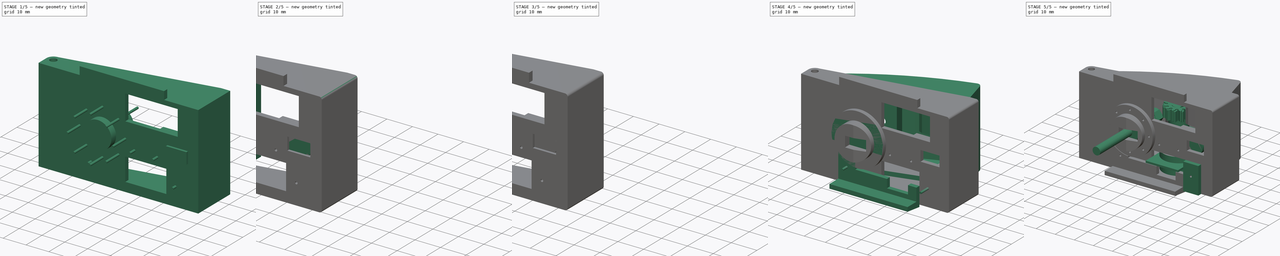
[diagram: build sequence overview — one tinted view per stage of 5, left to right]
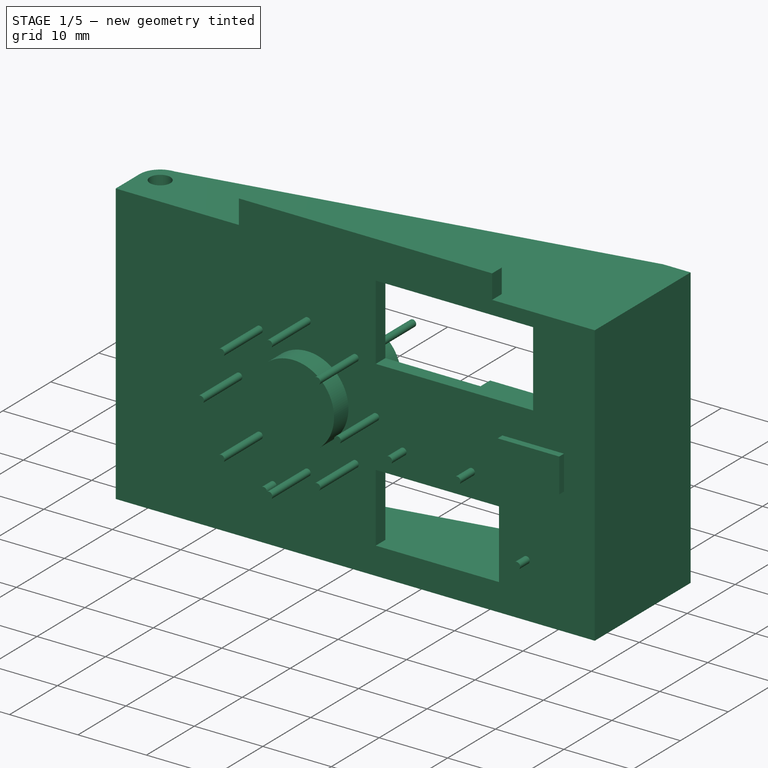
[diagram: stage 1 of 5 — iso view after this stage's code; geometry added in this stage tinted green]
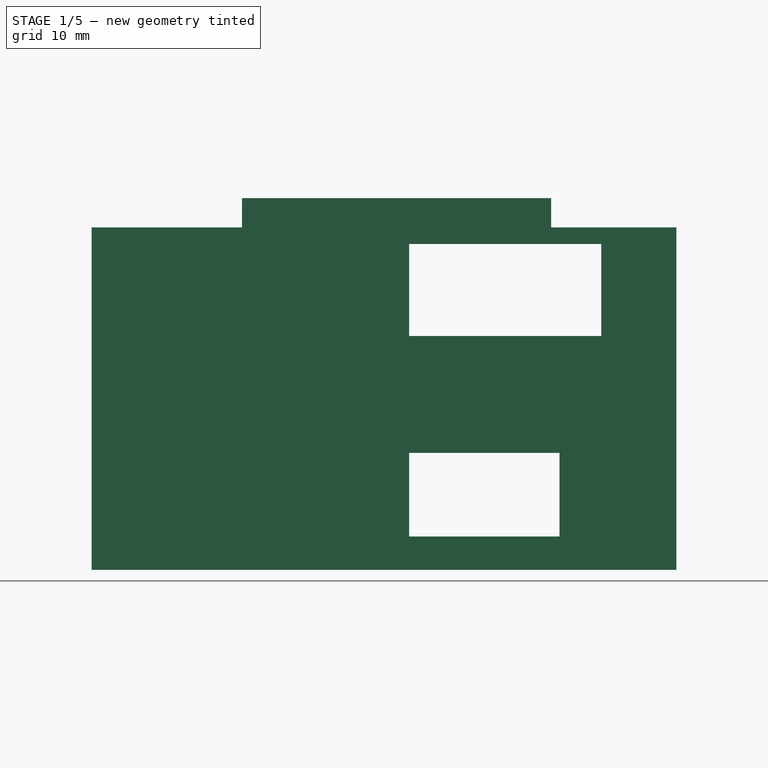
[diagram: stage 1 of 5 — front view after this stage's code; geometry added in this stage tinted green]
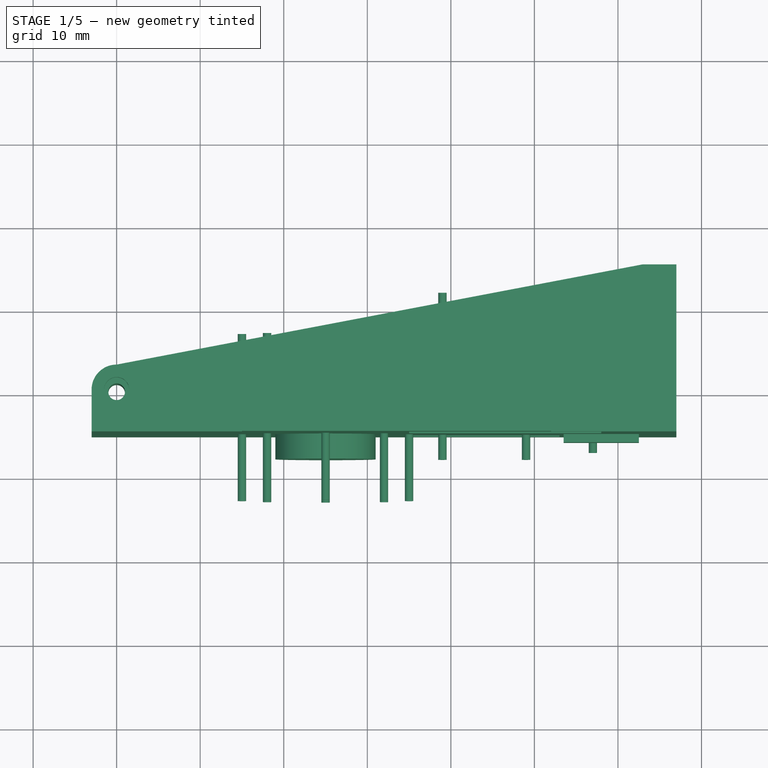
[diagram: stage 1 of 5 — top view after this stage's code; geometry added in this stage tinted green]
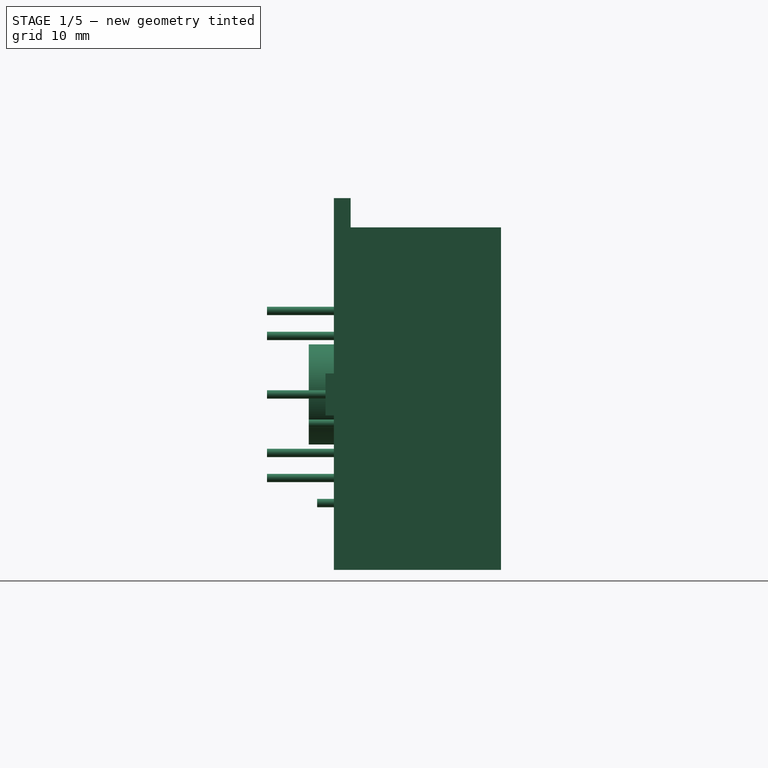
[diagram: stage 1 of 5 — right view after this stage's code; geometry added in this stage tinted green]
FCSTD DOCUMENT  (FreeCAD 0.19R19055 (Git))
Label: assembly_c
License: All rights reserved
LicenseURL: http://en.wikipedia.org/wiki/All_rights_reserved
objects: Part::FeaturePython×56, Part::Cylinder×50, Sketcher::SketchObject×39, Part::MultiFuse×35, Part::Cut×20, PartDesign::Pad×19, PartDesign::Body×17, Part::Box×15, PartDesign::Pocket×7, Part::RegularPolygon×3, Part::Extrusion×3, Part::Fillet×3, App::DocumentObjectGroup×2, Part::Helix×2, Part::Chamfer×1
note: 296 computed .brp shape members not serialized (recipe doc carries the construction recipe); baked Part::Feature solids carry a one-line shape summary decoded from their .brp

FEATURE [Sketcher::SketchObject] Sketch029
  sketch-geometry (1):
    g0: Circle CenterX=0 CenterY=0 CenterZ=0 NormalX=0 NormalY=0 NormalZ=-1 AngleXU=0 Radius=1.5
FEATURE [Sketcher::SketchObject] Sketch038
  MapMode = 5
  Support = -> [XY_Plane003]
  sketch-geometry (8):
    g0: LineSegment StartX=-3 StartY=-5 StartZ=0 EndX=67 EndY=-5 EndZ=0
    g1: LineSegment StartX=-3 StartY=-3 StartZ=0 EndX=-3 EndY=-5 EndZ=0
    g2: LineSegment StartX=-3 StartY=-3 StartZ=0 EndX=-3 EndY=0 EndZ=0
    g3: ArcOfCircle CenterX=0 CenterY=0 CenterZ=0 NormalX=0 NormalY=0 NormalZ=1 AngleXU=0 Radius=3 StartAngle=1.5708 EndAngle=3.14159
    g4: LineSegment StartX=63 StartY=15 StartZ=0 EndX=0 EndY=3 EndZ=0
    g5: LineSegment StartX=67 StartY=15 StartZ=0 EndX=63 EndY=15 EndZ=0
    g6: LineSegment StartX=67 StartY=-3 StartZ=0 EndX=67 EndY=15 EndZ=0
    g7: LineSegment StartX=67 StartY=-5 StartZ=0 EndX=67 EndY=-3 EndZ=0
FEATURE [PartDesign::Pad] Pad003
  Length = 2
  Length2 = 100
  Profile = -> Sketch038
  Type = 0
FEATURE [PartDesign::Pocket] Pocket003
  BaseFeature = -> Pad003
  Length = 2
  Length2 = 100
  Profile = -> Sketch029
  Reversed = true
  Type = 0
FEATURE [PartDesign::Body] Body003  label="Cover"
  Group = -> [Sketch038,Sketch029,Pad003,Pocket003]
  Origin = -> Origin003
  Tip = -> Pocket003
FEATURE [Sketcher::SketchObject] Sketch039
  sketch-geometry (1):
    g0: Circle CenterX=0 CenterY=0 CenterZ=0 NormalX=0 NormalY=0 NormalZ=-1 AngleXU=0 Radius=1.5
FEATURE [Sketcher::SketchObject] Sketch040
  MapMode = 5
  Support = -> [XY_Plane004]
  sketch-geometry (8):
    g0: LineSegment StartX=-3 StartY=-5 StartZ=0 EndX=67 EndY=-5 EndZ=0
    g1: LineSegment StartX=-3 StartY=-3 StartZ=0 EndX=-3 EndY=-5 EndZ=0
    g2: LineSegment StartX=-3 StartY=-3 StartZ=0 EndX=-3 EndY=0 EndZ=0
    g3: ArcOfCircle CenterX=0 CenterY=0 CenterZ=0 NormalX=0 NormalY=0 NormalZ=1 AngleXU=0 Radius=3 StartAngle=1.5708 EndAngle=3.14159
    g4: LineSegment StartX=63 StartY=15 StartZ=0 EndX=0 EndY=3 EndZ=0
    g5: LineSegment StartX=67 StartY=15 StartZ=0 EndX=63 EndY=15 EndZ=0
    g6: LineSegment StartX=67 StartY=-3 StartZ=0 EndX=67 EndY=15 EndZ=0
    g7: LineSegment StartX=67 StartY=-5 StartZ=0 EndX=67 EndY=-3 EndZ=0
FEATURE [PartDesign::Pad] Pad004
  Length = 2
  Length2 = 100
  Profile = -> Sketch040
  Type = 0
FEATURE [PartDesign::Pocket] Pocket004
  BaseFeature = -> Pad004
  Length = 2
  Length2 = 100
  Profile = -> Sketch039
  Reversed = true
  Type = 0
FEATURE [PartDesign::Body] Body004  label="Cover001"
  Group = -> [Sketch040,Sketch039,Pad004,Pocket004]
  Origin = -> Origin004
  Placement = pos=(0,0,39) rot=(0,0,1;0rad)
  Tip = -> Pocket004
FEATURE [Sketcher::SketchObject] Sketch047
  sketch-geometry (6):
    g0: LineSegment StartX=-3 StartY=-3 StartZ=0 EndX=64 EndY=-3 EndZ=0
    g1: LineSegment StartX=67 StartY=-5 StartZ=0 EndX=-3 EndY=-5 EndZ=0
    g2: LineSegment StartX=64 StartY=-3 StartZ=0 EndX=64 EndY=15 EndZ=0
    g3: LineSegment StartX=67 StartY=15 StartZ=0 EndX=67 EndY=-5 EndZ=0
    g4: LineSegment StartX=-3 StartY=-5 StartZ=0 EndX=-3 EndY=-3 EndZ=0
    g5: LineSegment StartX=64 StartY=15 StartZ=0 EndX=67 EndY=15 EndZ=0
  constraints (6):
    c: Coincident(g1,g4)
    c: Coincident(g0,g4)
    c: Coincident(g0,g2)
    c: Coincident(g2,g5)
    c: Coincident(g1,g3)
    c: Coincident(g3,g5)
FEATURE [PartDesign::Pad] Pad005
  Length = 37
  Length2 = 100
  Profile = -> Sketch047
  Type = 0
FEATURE [Part::Box] Box  label="Cube"
  AttacherType = Attacher::AttachEngine3D
  Height = 10
  Length = 18
  Placement = pos=(35,-5,4) rot=(0,0,1;0rad)
  Width = 10
FEATURE [Part::Box] Box001  label="Cube001"
  AttacherType = Attacher::AttachEngine3D
  Height = 13
  Length = 23
  Placement = pos=(35,-5,28) rot=(0,0,1;0rad)
  Width = 10
FEATURE [Part::MultiFuse] Fusion003
  Shapes = -> [Box,Box001]
FEATURE [Part::Cut] Cut  label="Bottom_Plate"
  Base = -> Body005
  Tool = -> Fusion003
FEATURE [Sketcher::SketchObject] Sketch151
  MapMode = 5
  Support = -> [XY_Plane014]
  sketch-geometry (4):
    g0: LineSegment StartX=15 StartY=-5 StartZ=0 EndX=52 EndY=-5 EndZ=0
    g1: LineSegment StartX=52 StartY=-5 StartZ=0 EndX=52 EndY=-3 EndZ=0
    g2: LineSegment StartX=15 StartY=-3 StartZ=0 EndX=15 EndY=-5 EndZ=0
    g3: LineSegment StartX=52 StartY=-3 StartZ=0 EndX=15 EndY=-3 EndZ=0
FEATURE [PartDesign::Pad] Pad016
  Length = 3.5
  Length2 = 100
  Profile = -> Sketch151
  Type = 0
FEATURE [Part::Cylinder] Cylinder001
  Angle = 360
  AttacherType = Attacher::AttachEngine3D
  Height = 4
  Placement = pos=(57,1,8) rot=(1,0,0;1.5708rad)
  Radius = 2.5
FEATURE [Part::Cylinder] Cylinder002
  Angle = 360
  AttacherType = Attacher::AttachEngine3D
  Height = 4
  Placement = pos=(20,1,8) rot=(1,0,0;1.5708rad)
  Radius = 2.5
FEATURE [Part::MultiFuse] Fusion008  label="Cover1"
  Shapes = -> [Body014,Body004]
FEATURE [Part::Cylinder] Cylinder006
  Angle = 360
  AttacherType = Attacher::AttachEngine3D
  Height = 14
  Placement = pos=(56,-3,21) rot=(-1,0,0;1.5708rad)
  Radius = 5
FEATURE [Part::Cylinder] Cylinder011
  Angle = 360
  AttacherType = Attacher::AttachEngine3D
  Height = 12
  Placement = pos=(0,0,14.5) rot=(0,0,1;0rad)
  Radius = 3
FEATURE [Part::Cylinder] Cylinder012
  Angle = 360
  AttacherType = Attacher::AttachEngine3D
  Height = 15
  Placement = pos=(0,0,13) rot=(0,0,1;0rad)
  Radius = 1
FEATURE [Part::Box] Box007  label="Cube007"
  AttacherType = Attacher::AttachEngine3D
  Height = 12
  Length = 6
  Placement = pos=(-3,-3,14.5) rot=(0,0,1;0rad)
  Width = 3
FEATURE [Part::MultiFuse] Fusion013
  Shapes = -> [Cylinder011,Box007]
FEATURE [Part::Cut] Cut008
  Base = -> Fusion013
  Tool = -> Cylinder012
FEATURE [Part::Cylinder] Cylinder013
  Angle = 360
  AttacherType = Attacher::AttachEngine3D
  Height = 10
  Placement = pos=(20,3,8) rot=(1,0,0;1.5708rad)
  Radius = 0.5
FEATURE [Part::Cylinder] Cylinder014
  Angle = 360
  AttacherType = Attacher::AttachEngine3D
  Height = 10
  Placement = pos=(57,3,8) rot=(1,0,0;1.5708rad)
  Radius = 0.5
FEATURE [Part::Cylinder] Cylinder015
  Angle = 360
  AttacherType = Attacher::AttachEngine3D
  Height = 20
  Placement = pos=(39,12,17.5) rot=(1,0,0;1.5708rad)
  Radius = 0.5
FEATURE [Part::Cylinder] Cylinder016
  Angle = 360
  AttacherType = Attacher::AttachEngine3D
  Height = 20
  Placement = pos=(49,12,17.5) rot=(1,0,0;1.5708rad)
  Radius = 0.5
FEATURE [Part::MultiFuse] Fusion017
  Shapes = -> [Cylinder016,Cylinder015]
FEATURE [Part::Box] Box008  label="Cube008"
  AttacherType = Attacher::AttachEngine3D
  Height = 5
  Length = 9
  Placement = pos=(53.5,-6,18.5) rot=(0,0,1;0rad)
  Width = 10
FEATURE [Part::Box] Box009  label="Cube009"
  AttacherType = Attacher::AttachEngine3D
  Height = 14
  Length = 11.2
  Placement = pos=(52.9,-3,14) rot=(0,0,1;0rad)
  Width = 2
FEATURE [Part::Box] Box010  label="Cube010"
  AttacherType = Attacher::AttachEngine3D
  Height = 7
  Length = 4
  Placement = pos=(48.9,-3,21) rot=(0,0,1;0rad)
  Width = 2
FEATURE [Part::MultiFuse] Fusion019
  Shapes = -> [Box009,Box010]
FEATURE [Part::MultiFuse] Fusion027
  Shapes = -> [Box008,Cylinder006]
FEATURE [Part::MultiFuse] Fusion028
  Shapes = -> [Cylinder002,Cylinder001]
FEATURE [Part::Cylinder] Cylinder029
  Angle = 360
  AttacherType = Attacher::AttachEngine3D
  Height = 14
  Placement = pos=(25,-8,21) rot=(-1,0,0;1.5708rad)
  Radius = 6
FEATURE [Part::Cylinder] Cylinder041
  Angle = 360
  AttacherType = Attacher::AttachEngine3D
  Height = 20
  Placement = pos=(32,7,14) rot=(1,0,0;1.5708rad)
  Radius = 0.5
FEATURE [Part::Cylinder] Cylinder042
  Angle = 360
  AttacherType = Attacher::AttachEngine3D
  Height = 20
  Placement = pos=(18,7,14) rot=(1,0,0;1.5708rad)
  Radius = 0.5
FEATURE [Part::Cylinder] Cylinder043
  Angle = 360
  AttacherType = Attacher::AttachEngine3D
  Height = 20
  Placement = pos=(35,7,21) rot=(1,0,0;1.5708rad)
  Radius = 0.5
FEATURE [Part::Cylinder] Cylinder044
  Angle = 360
  AttacherType = Attacher::AttachEngine3D
  Height = 20
  Placement = pos=(15,7,21) rot=(1,0,0;1.5708rad)
  Radius = 0.5
FEATURE [Part::Cylinder] Cylinder045
  Angle = 360
  AttacherType = Attacher::AttachEngine3D
  Height = 20
  Placement = pos=(25,7,11) rot=(1,0,0;1.5708rad)
  Radius = 0.5
FEATURE [Part::Cylinder] Cylinder046
  Angle = 360
  AttacherType = Attacher::AttachEngine3D
  Height = 20
  Placement = pos=(18,7,28) rot=(1,0,0;1.5708rad)
  Radius = 0.5
FEATURE [Part::Cylinder] Cylinder047
  Angle = 360
  AttacherType = Attacher::AttachEngine3D
  Height = 20
  Placement = pos=(25,7,31) rot=(1,0,0;1.5708rad)
  Radius = 0.5
FEATURE [Part::Cylinder] Cylinder048
  Angle = 360
  AttacherType = Attacher::AttachEngine3D
  Height = 20
  Placement = pos=(32,7,28) rot=(1,0,0;1.5708rad)
  Radius = 0.5
FEATURE [Part::MultiFuse] Fusion035
  Shapes = -> [Cylinder044,Cylinder041,Cylinder042,Cylinder043,Cylinder045,Cylinder046,Cylinder047,Cylinder048]
FEATURE [Part::MultiFuse] Fusion037
  Shapes = -> [Fusion027,Cylinder029]
FEATURE [Part::MultiFuse] Fusion040
  Shapes = -> [Cut008,Fusion008,Fusion028,Cut,Body003,Fusion019,Pocket003]
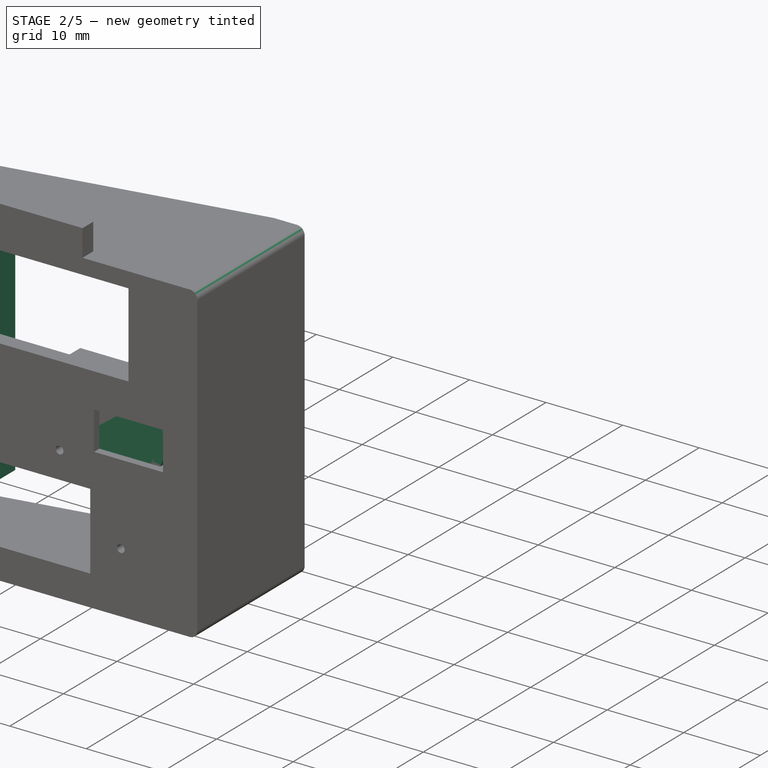
[diagram: stage 2 of 5 — iso view after this stage's code; geometry added in this stage tinted green]
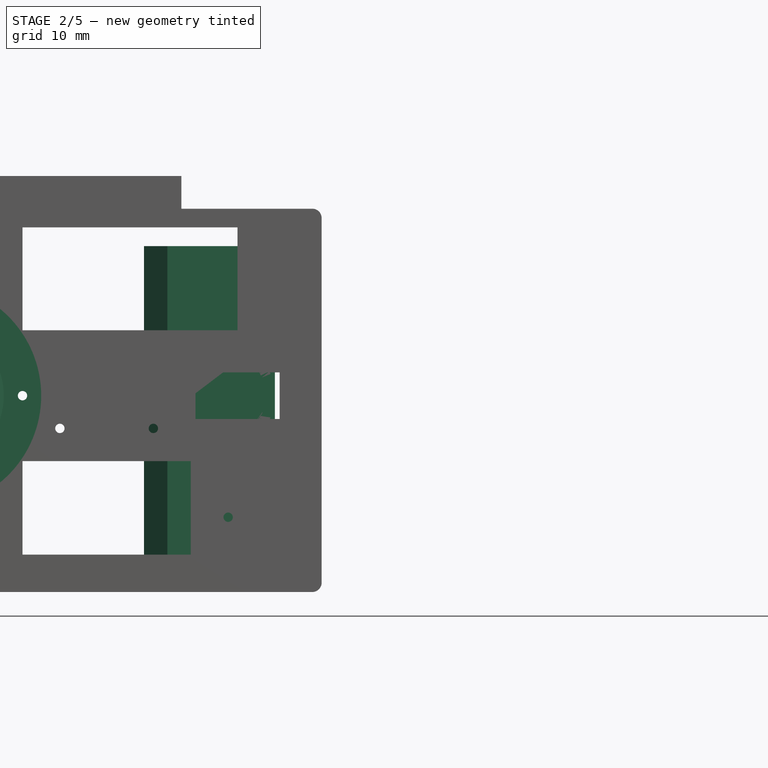
[diagram: stage 2 of 5 — front view after this stage's code; geometry added in this stage tinted green]
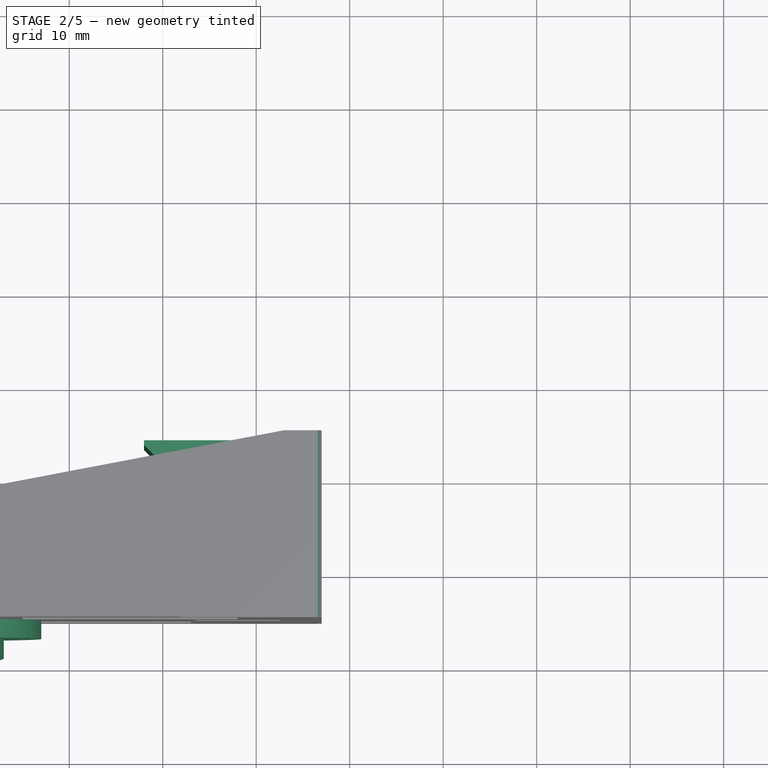
[diagram: stage 2 of 5 — top view after this stage's code; geometry added in this stage tinted green]
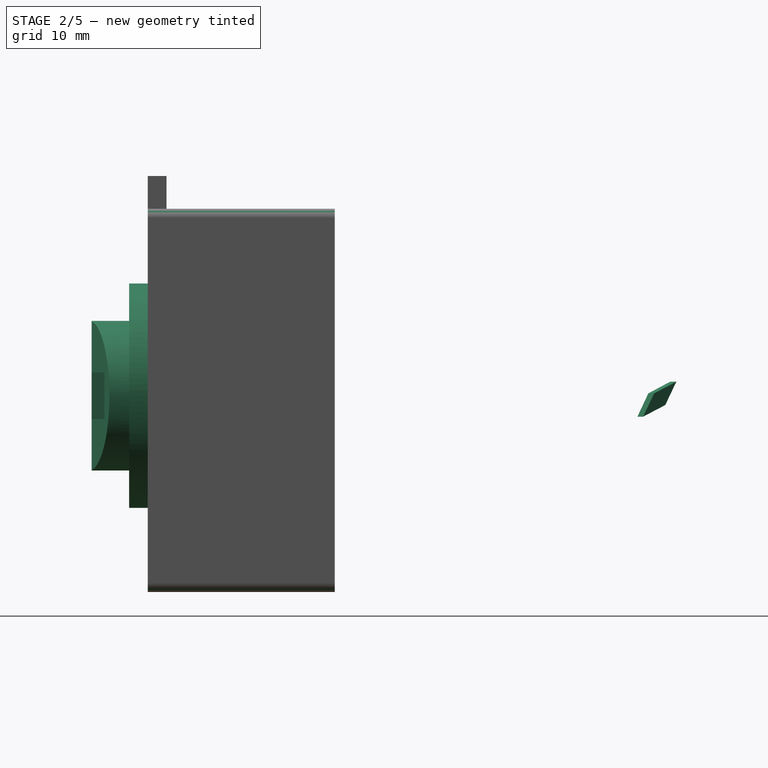
[diagram: stage 2 of 5 — right view after this stage's code; geometry added in this stage tinted green]
FEATURE [Part::FeaturePython] WrappedSketch055  # WARN: FeaturePython — macro-defined, semantics opaque (R4)
  RuledRadius = 158
  SketchLabel = Sketch274
  Thickness = 2
FEATURE [Part::Box] Box005  label="Cube005"
  AttacherType = Attacher::AttachEngine3D
  Height = 33
  Length = 14
  Placement = pos=(48,11,4) rot=(0,0,1;0rad)
  Width = 3
FEATURE [Part::Chamfer] Chamfer
  Base = -> Box005
  Edges = 1 edges r=2.5: [Edge1]
FEATURE [Part::Cylinder] Cylinder010
  Angle = 360
  AttacherType = Attacher::AttachEngine3D
  Height = 12.3333
  Placement = pos=(0,0,14.333) rot=(0,0,1;0rad)
  Radius = 3.2
FEATURE [Part::Box] Box006  label="Cube006"
  AttacherType = Attacher::AttachEngine3D
  Height = 12.33
  Length = 7
  Placement = pos=(0,-3,14.333) rot=(0,0,1;0rad)
  Width = 5
FEATURE [Part::MultiFuse] Fusion012
  Shapes = -> [Cylinder010,Box006]
FEATURE [Part::MultiFuse] Fusion015
  Shapes = -> [Cylinder014,Cylinder013]
FEATURE [Part::Cylinder] Cylinder019
  Angle = 360
  AttacherType = Attacher::AttachEngine3D
  Height = 15
  Placement = pos=(56,-4,21) rot=(-1,0,0;1.5708rad)
  Radius = 6
FEATURE [Part::MultiFuse] Fusion026
  Shapes = -> [Fusion017,Fusion015]
FEATURE [Part::Box] Box011  label="Cube011"
  AttacherType = Attacher::AttachEngine3D
  Height = 32
  Length = 7
  Placement = pos=(18,5,4.5) rot=(0,0,1;0rad)
  Width = 4.5
FEATURE [Part::Helix] Helix001
  Angle = 0
  AttacherType = Attacher::AttachEngine3D
  Height = 14
  LocalCoord = 0
  Pitch = 1
  Placement = pos=(25,6,21) rot=(1,0,0;1.5708rad)
  Radius = 4.5
  Style = 1
FEATURE [Part::Box] Box012  label="Cube012"
  AttacherType = Attacher::AttachEngine3D
  Height = 32
  Length = 7
  Placement = pos=(25,5,4.5) rot=(0,0,1;0rad)
  Width = 6
FEATURE [Part::Cylinder] Cylinder026
  Angle = 360
  AttacherType = Attacher::AttachEngine3D
  Height = 14
  Placement = pos=(25,-8,21) rot=(-1,0,0;1.5708rad)
  Radius = 5
FEATURE [Part::Box] Box013  label="Cube013"
  AttacherType = Attacher::AttachEngine3D
  Height = 5
  Length = 9
  Placement = pos=(22,-13,18.5) rot=(0,0,1;0rad)
  Width = 10
FEATURE [Part::MultiFuse] Fusion029
  Shapes = -> [Box011,Box012]
FEATURE [Part::Cut] Cut019
  Base = -> Fusion029
  Tool = -> Cylinder026
FEATURE [Part::Cylinder] Cylinder030
  Angle = 360
  AttacherType = Attacher::AttachEngine3D
  Height = 14
  Placement = pos=(25,-8,21) rot=(-1,0,0;1.5708rad)
  Radius = 6
FEATURE [Part::Cylinder] Cylinder031
  Angle = 360
  AttacherType = Attacher::AttachEngine3D
  Height = 6
  Placement = pos=(25,-11,21) rot=(-1,0,0;1.5708rad)
  Radius = 8
FEATURE [Part::MultiFuse] Fusion032
  Shapes = -> [Box013,Cylinder030]
FEATURE [Part::Cylinder] Cylinder032
  Angle = 360
  AttacherType = Attacher::AttachEngine3D
  Height = 2
  Placement = pos=(25,-7,21) rot=(-1,0,0;1.5708rad)
  Radius = 12
FEATURE [Part::Cylinder] Cylinder033
  Angle = 360
  AttacherType = Attacher::AttachEngine3D
  Height = 20
  Placement = pos=(15,7,21) rot=(1,0,0;1.5708rad)
  Radius = 0.5
FEATURE [Part::Cylinder] Cylinder034
  Angle = 360
  AttacherType = Attacher::AttachEngine3D
  Height = 20
  Placement = pos=(35,7,21) rot=(1,0,0;1.5708rad)
  Radius = 0.5
FEATURE [Part::Cylinder] Cylinder035
  Angle = 360
  AttacherType = Attacher::AttachEngine3D
  Height = 20
  Placement = pos=(25,7,11) rot=(1,0,0;1.5708rad)
  Radius = 0.5
FEATURE [Part::Cylinder] Cylinder036
  Angle = 360
  AttacherType = Attacher::AttachEngine3D
  Height = 20
  Placement = pos=(25,7,31) rot=(1,0,0;1.5708rad)
  Radius = 0.5
FEATURE [Part::Cylinder] Cylinder037
  Angle = 360
  AttacherType = Attacher::AttachEngine3D
  Height = 20
  Placement = pos=(32,7,28) rot=(1,0,0;1.5708rad)
  Radius = 0.5
FEATURE [Part::Cylinder] Cylinder038
  Angle = 360
  AttacherType = Attacher::AttachEngine3D
  Height = 20
  Placement = pos=(18,7,14) rot=(1,0,0;1.5708rad)
  Radius = 0.5
FEATURE [Part::Cylinder] Cylinder039
  Angle = 360
  AttacherType = Attacher::AttachEngine3D
  Height = 20
  Placement = pos=(32,7,14) rot=(1,0,0;1.5708rad)
  Radius = 0.5
FEATURE [Part::Cylinder] Cylinder040
  Angle = 360
  AttacherType = Attacher::AttachEngine3D
  Height = 20
  Placement = pos=(18,7,28) rot=(1,0,0;1.5708rad)
  Radius = 0.5
FEATURE [Part::MultiFuse] Fusion033
  Shapes = -> [Cylinder033,Cylinder039,Cylinder038,Cylinder034,Cylinder035,Cylinder040,Cylinder036,Cylinder037]
FEATURE [Part::MultiFuse] Fusion034
  Shapes = -> [Cylinder032,Cylinder031]
FEATURE [Part::Cut] Cut022
  Base = -> Fusion034
  Tool = -> Fusion032
FEATURE [Part::Cut] Cut023  label="SpringFlange"
  Base = -> Cut022
  Tool = -> Fusion033
FEATURE [Part::Cylinder] Cylinder049
  Angle = 360
  AttacherType = Attacher::AttachEngine3D
  Height = 12.3333
  Placement = pos=(0,0,14.333) rot=(0,0,1;0rad)
  Radius = 1.5
FEATURE [Part::Cut] Cut025  label="Hinge"
  Base = -> Fusion012
  Tool = -> Cylinder049
FEATURE [Part::MultiFuse] Fusion036
  Shapes = -> [Fusion026,Fusion035]
FEATURE [Part::MultiFuse] Fusion039
  Shapes = -> [Fusion036,Fusion037]
FEATURE [Part::Cut] Cut027  label="BasePlate"
  Base = -> Fusion040
  Tool = -> Fusion039
FEATURE [Part::Cylinder] Cylinder051
  Angle = 360
  AttacherType = Attacher::AttachEngine3D
  Height = 17
  Placement = pos=(56,-4,21) rot=(-1,0,0;1.5708rad)
  Radius = 5
FEATURE [Part::MultiFuse] Fusion041
  Shapes = -> [Cylinder019,Cylinder051]
FEATURE [Part::Fillet] Fillet001  label="BasePlate001"
  Base = -> Cut027
  Edges = 2 edges r=1: [Edge9,Edge152]
FEATURE [Part::Box] Box014  label="Cube014"
  AttacherType = Attacher::AttachEngine3D
  Height = 16
  Length = 16
  Placement = pos=(19,-17,13) rot=(0,0,1;0.261799rad)
  Width = 4
FEATURE [Part::Cut] Cut030  label="SpringFlange001"
  Base = -> Cut023
  Tool = -> Box014
FEATURE [Part::Fillet] Fillet002
  Base = -> Fillet001
  Edges = 1 edges r=1: [Edge94]
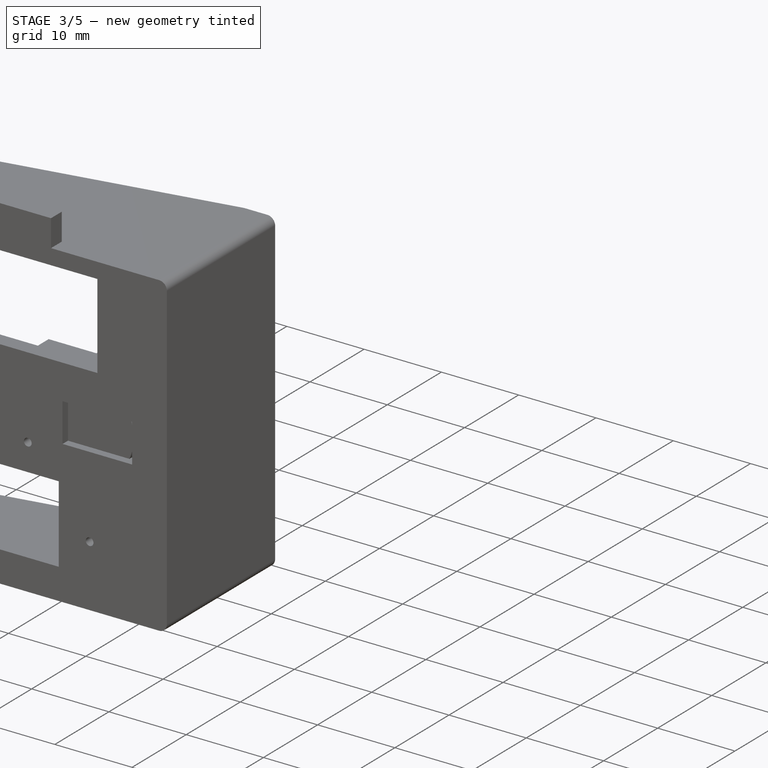
[diagram: stage 3 of 5 — iso view after this stage's code; geometry added in this stage tinted green]
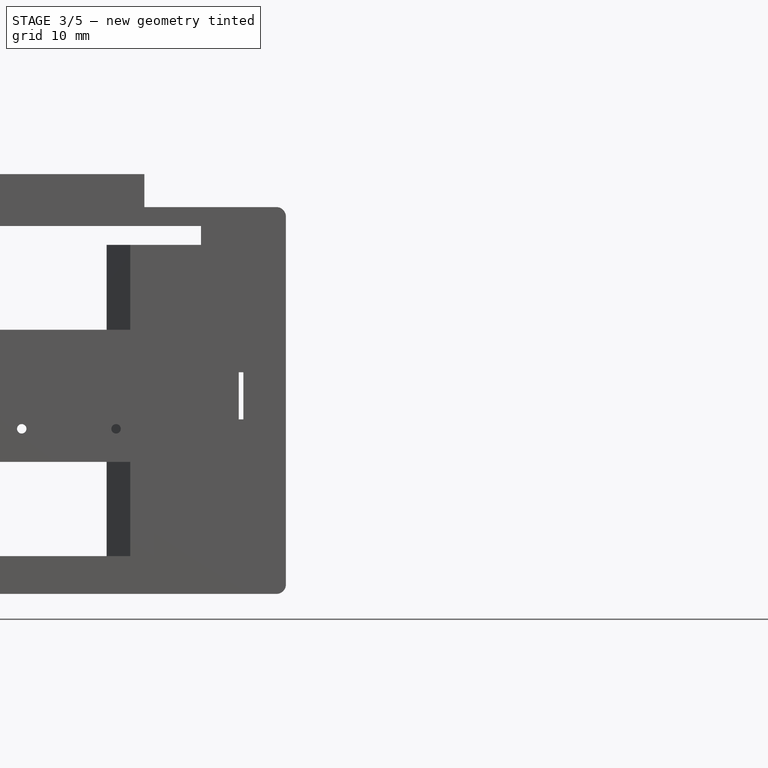
[diagram: stage 3 of 5 — front view after this stage's code; geometry added in this stage tinted green]
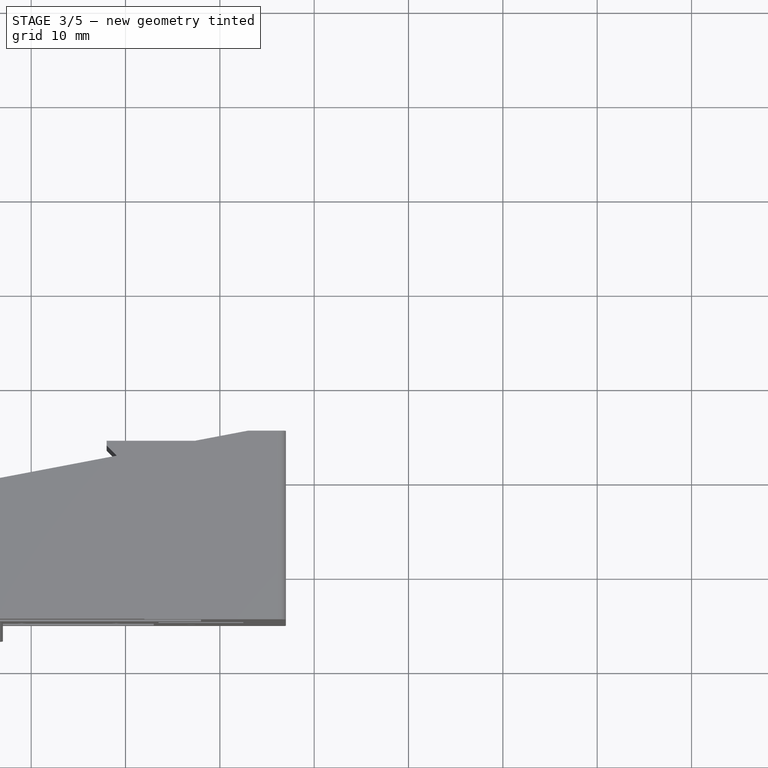
[diagram: stage 3 of 5 — top view after this stage's code; geometry added in this stage tinted green]
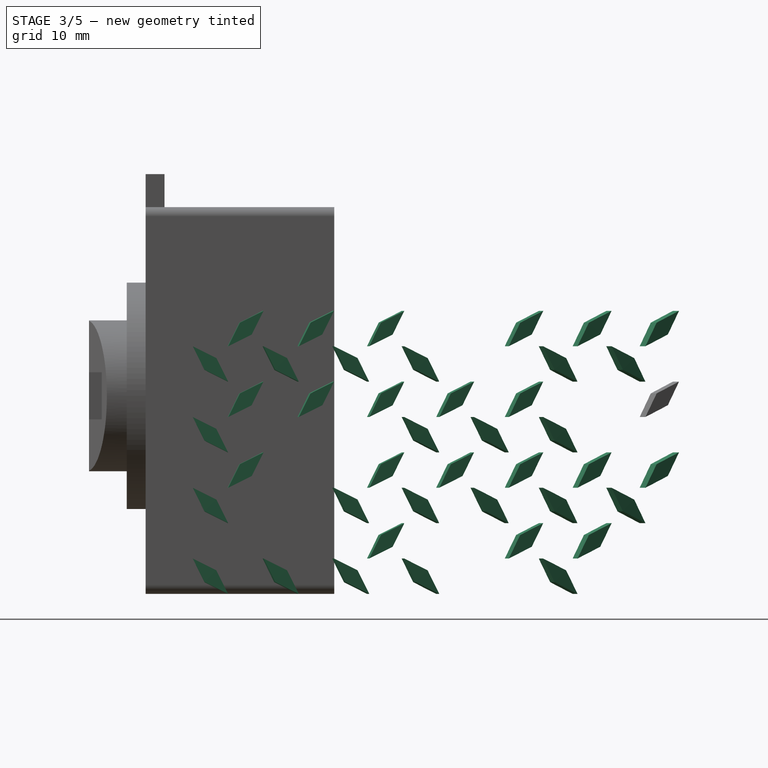
[diagram: stage 3 of 5 — right view after this stage's code; geometry added in this stage tinted green]
FEATURE [Part::FeaturePython] WrappedSketch  # WARN: FeaturePython — macro-defined, semantics opaque (R4)
  RuledRadius = 158
  SketchLabel = Sketch224
  Thickness = 2
FEATURE [Part::FeaturePython] WrappedSketch006  # WARN: FeaturePython — macro-defined, semantics opaque (R4)
  RuledRadius = 158
  SketchLabel = Sketch268
  Thickness = 2
FEATURE [Part::FeaturePython] WrappedSketch004  # WARN: FeaturePython — macro-defined, semantics opaque (R4)
  RuledRadius = 158
  SketchLabel = Sketch244
  Thickness = 2
FEATURE [Part::FeaturePython] WrappedSketch001  # WARN: FeaturePython — macro-defined, semantics opaque (R4)
  RuledRadius = 158
  SketchLabel = Sketch233
  Thickness = 2
FEATURE [Part::FeaturePython] WrappedSketch003  # WARN: FeaturePython — macro-defined, semantics opaque (R4)
  RuledRadius = 158
  SketchLabel = Sketch260
  Thickness = 2
FEATURE [Part::FeaturePython] WrappedSketch019  # WARN: FeaturePython — macro-defined, semantics opaque (R4)
  RuledRadius = 158
  SketchLabel = Sketch226
  Thickness = 2
FEATURE [Part::FeaturePython] WrappedSketch020  # WARN: FeaturePython — macro-defined, semantics opaque (R4)
  RuledRadius = 158
  SketchLabel = Sketch227
  Thickness = 2
FEATURE [Part::FeaturePython] WrappedSketch021  # WARN: FeaturePython — macro-defined, semantics opaque (R4)
  RuledRadius = 158
  SketchLabel = Sketch228
  Thickness = 2
FEATURE [Part::FeaturePython] WrappedSketch022  # WARN: FeaturePython — macro-defined, semantics opaque (R4)
  RuledRadius = 158
  SketchLabel = Sketch231
  Thickness = 2
FEATURE [Part::FeaturePython] WrappedSketch023  # WARN: FeaturePython — macro-defined, semantics opaque (R4)
  RuledRadius = 158
  SketchLabel = Sketch232
  Thickness = 2
FEATURE [Part::FeaturePython] WrappedSketch024  # WARN: FeaturePython — macro-defined, semantics opaque (R4)
  RuledRadius = 158
  SketchLabel = Sketch242
  Thickness = 2
FEATURE [Part::FeaturePython] WrappedSketch025  # WARN: FeaturePython — macro-defined, semantics opaque (R4)
  RuledRadius = 158
  SketchLabel = Sketch250
  Thickness = 2
FEATURE [Part::FeaturePython] WrappedSketch026  # WARN: FeaturePython — macro-defined, semantics opaque (R4)
  RuledRadius = 158
  SketchLabel = Sketch240
  Thickness = 2
FEATURE [Part::FeaturePython] WrappedSketch027  # WARN: FeaturePython — macro-defined, semantics opaque (R4)
  RuledRadius = 158
  SketchLabel = Sketch229
  Thickness = 2
FEATURE [Part::FeaturePython] WrappedSketch028  # WARN: FeaturePython — macro-defined, semantics opaque (R4)
  RuledRadius = 158
  SketchLabel = Sketch241
  Thickness = 2
FEATURE [Part::FeaturePython] WrappedSketch029  # WARN: FeaturePython — macro-defined, semantics opaque (R4)
  RuledRadius = 158
  SketchLabel = Sketch252
  Thickness = 2
FEATURE [Part::FeaturePython] WrappedSketch030  # WARN: FeaturePython — macro-defined, semantics opaque (R4)
  RuledRadius = 158
  SketchLabel = Sketch264
  Thickness = 2
FEATURE [Part::FeaturePython] WrappedSketch031  # WARN: FeaturePython — macro-defined, semantics opaque (R4)
  RuledRadius = 158
  SketchLabel = Sketch258
  Thickness = 2
FEATURE [Part::FeaturePython] WrappedSketch032  # WARN: FeaturePython — macro-defined, semantics opaque (R4)
  RuledRadius = 158
  SketchLabel = Sketch259
  Thickness = 2
FEATURE [Part::FeaturePython] WrappedSketch033  # WARN: FeaturePython — macro-defined, semantics opaque (R4)
  RuledRadius = 158
  SketchLabel = Sketch273
  Thickness = 2
FEATURE [Part::FeaturePython] WrappedSketch034  # WARN: FeaturePython — macro-defined, semantics opaque (R4)
  RuledRadius = 158
  SketchLabel = Sketch261
  Thickness = 2
FEATURE [Part::FeaturePython] WrappedSketch035  # WARN: FeaturePython — macro-defined, semantics opaque (R4)
  RuledRadius = 158
  SketchLabel = Sketch271
  Thickness = 2
FEATURE [Part::FeaturePython] WrappedSketch036  # WARN: FeaturePython — macro-defined, semantics opaque (R4)
  RuledRadius = 158
  SketchLabel = Sketch239
  Thickness = 2
FEATURE [Part::FeaturePython] WrappedSketch037  # WARN: FeaturePython — macro-defined, semantics opaque (R4)
  RuledRadius = 158
  SketchLabel = Sketch255
  Thickness = 2
FEATURE [Part::FeaturePython] WrappedSketch038  # WARN: FeaturePython — macro-defined, semantics opaque (R4)
  RuledRadius = 158
  SketchLabel = Sketch246
  Thickness = 2
FEATURE [Part::FeaturePython] WrappedSketch039  # WARN: FeaturePython — macro-defined, semantics opaque (R4)
  RuledRadius = 158
  SketchLabel = Sketch251
  Thickness = 2
FEATURE [Part::FeaturePython] WrappedSketch040  # WARN: FeaturePython — macro-defined, semantics opaque (R4)
  RuledRadius = 158
  SketchLabel = Sketch247
  Thickness = 2
FEATURE [Part::FeaturePython] WrappedSketch041  # WARN: FeaturePython — macro-defined, semantics opaque (R4)
  RuledRadius = 158
  SketchLabel = Sketch253
  Thickness = 2
FEATURE [Part::FeaturePython] WrappedSketch042  # WARN: FeaturePython — macro-defined, semantics opaque (R4)
  RuledRadius = 158
  SketchLabel = Sketch245
  Thickness = 2
FEATURE [Part::FeaturePython] WrappedSketch043  # WARN: FeaturePython — macro-defined, semantics opaque (R4)
  RuledRadius = 158
  SketchLabel = Sketch267
  Thickness = 2
FEATURE [Part::FeaturePython] WrappedSketch044  # WARN: FeaturePython — macro-defined, semantics opaque (R4)
  RuledRadius = 158
  SketchLabel = Sketch265
  Thickness = 2
FEATURE [Part::FeaturePython] WrappedSketch045  # WARN: FeaturePython — macro-defined, semantics opaque (R4)
  RuledRadius = 158
  SketchLabel = Sketch225
  Thickness = 2
FEATURE [Part::FeaturePython] WrappedSketch046  # WARN: FeaturePython — macro-defined, semantics opaque (R4)
  RuledRadius = 158
  SketchLabel = Sketch272
  Thickness = 2
FEATURE [Part::FeaturePython] WrappedSketch047  # WARN: FeaturePython — macro-defined, semantics opaque (R4)
  RuledRadius = 158
  SketchLabel = Sketch277
  Thickness = 2
FEATURE [Part::FeaturePython] WrappedSketch048  # WARN: FeaturePython — macro-defined, semantics opaque (R4)
  RuledRadius = 158
  SketchLabel = Sketch269
  Thickness = 2
FEATURE [Part::FeaturePython] WrappedSketch049  # WARN: FeaturePython — macro-defined, semantics opaque (R4)
  RuledRadius = 158
  SketchLabel = Sketch249
  Thickness = 2
FEATURE [Part::FeaturePython] WrappedSketch050  # WARN: FeaturePython — macro-defined, semantics opaque (R4)
  RuledRadius = 158
  SketchLabel = Sketch262
  Thickness = 2
FEATURE [Part::FeaturePython] WrappedSketch051  # WARN: FeaturePython — macro-defined, semantics opaque (R4)
  RuledRadius = 158
  SketchLabel = Sketch234
  Thickness = 2
FEATURE [Part::FeaturePython] WrappedSketch052  # WARN: FeaturePython — macro-defined, semantics opaque (R4)
  RuledRadius = 158
  SketchLabel = Sketch256
  Thickness = 2
FEATURE [Part::FeaturePython] WrappedSketch053  # WARN: FeaturePython — macro-defined, semantics opaque (R4)
  RuledRadius = 158
  SketchLabel = Sketch276
  Thickness = 2
FEATURE [Part::FeaturePython] WrappedSketch054  # WARN: FeaturePython — macro-defined, semantics opaque (R4)
  RuledRadius = 158
  SketchLabel = Sketch270
  Thickness = 2
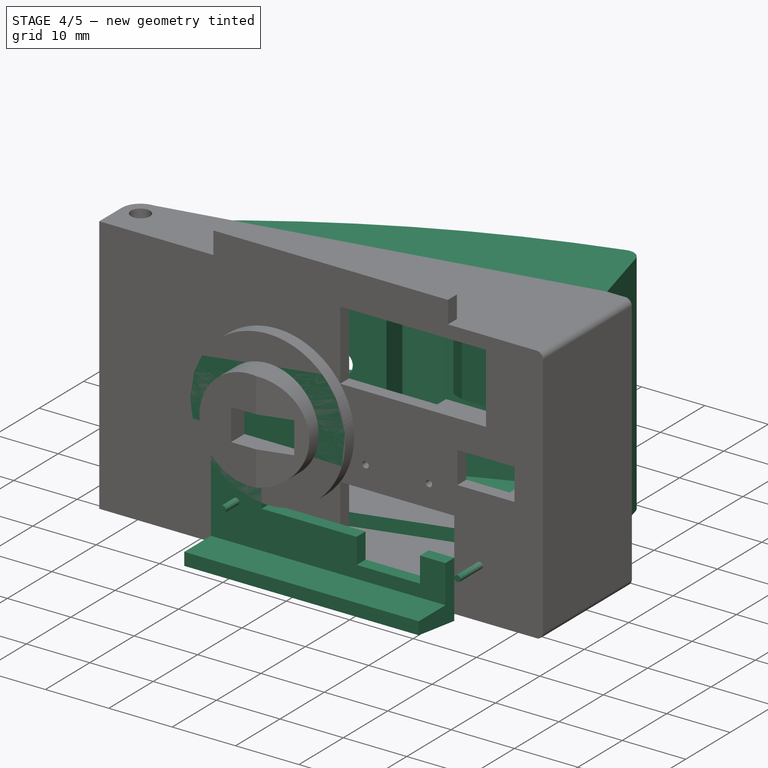
[diagram: stage 4 of 5 — iso view after this stage's code; geometry added in this stage tinted green]
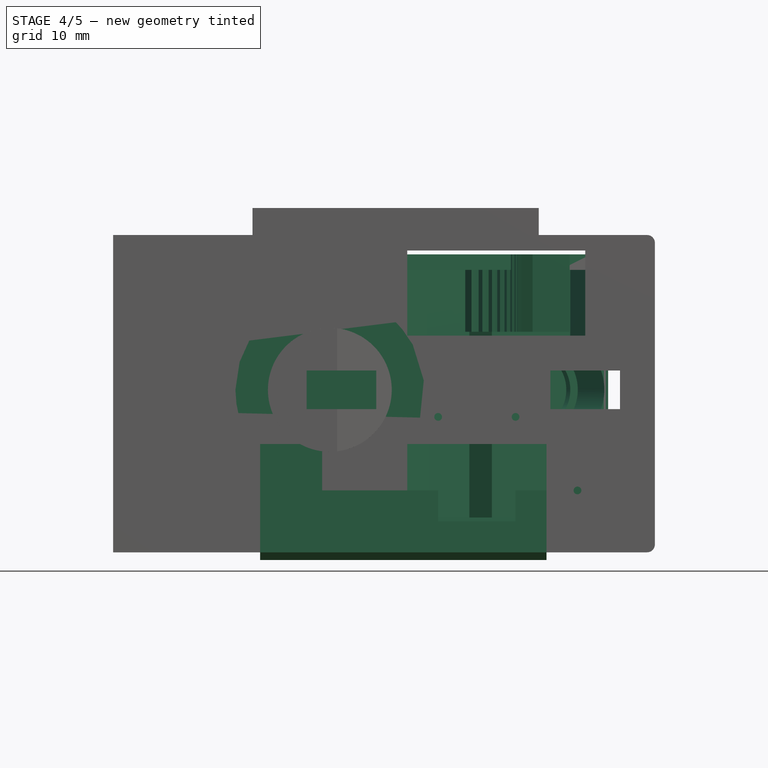
[diagram: stage 4 of 5 — front view after this stage's code; geometry added in this stage tinted green]
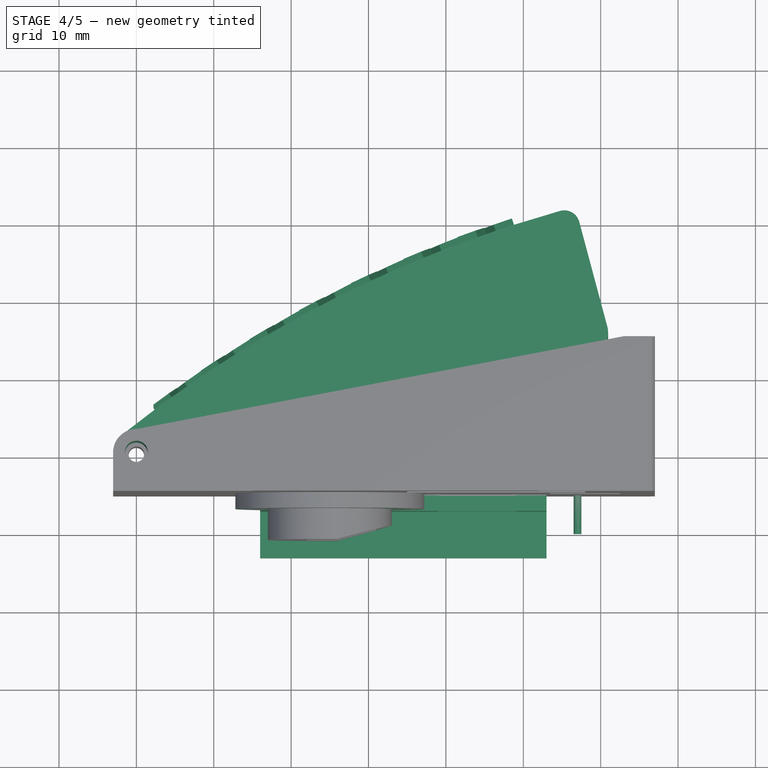
[diagram: stage 4 of 5 — top view after this stage's code; geometry added in this stage tinted green]
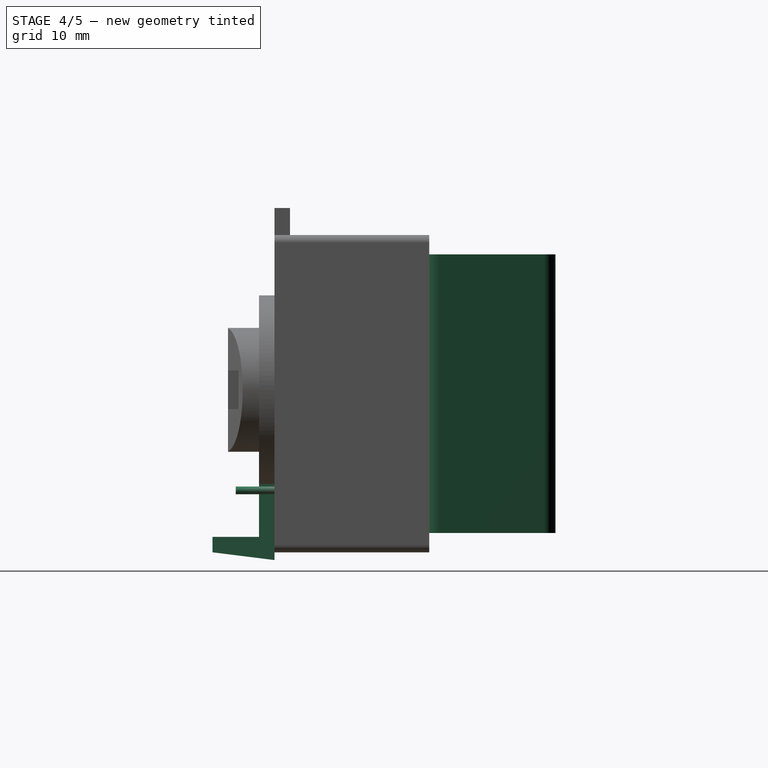
[diagram: stage 4 of 5 — right view after this stage's code; geometry added in this stage tinted green]
FEATURE [Sketcher::SketchObject] Sketch
  sketch-geometry (1):
    g0: LineSegment StartX=63 StartY=-5.87466e-07 StartZ=0 EndX=63 EndY=16 EndZ=0
FEATURE [Sketcher::SketchObject] Sketch001
  sketch-geometry (1):
    g0: ArcOfCircle CenterX=0 CenterY=0 CenterZ=0 NormalX=0 NormalY=0 NormalZ=1 AngleXU=0 Radius=3 StartAngle=2.135 EndAngle=4.71239
FEATURE [Sketcher::SketchObject] Sketch002
  sketch-geometry (1):
    g0: LineSegment StartX=3 StartY=-3 StartZ=0 EndX=3 EndY=2.32239 EndZ=0
FEATURE [Sketcher::SketchObject] Sketch003
  sketch-geometry (1):
    g0: LineSegment StartX=0 StartY=-3 StartZ=0 EndX=3 EndY=-3 EndZ=0
FEATURE [Sketcher::SketchObject] Sketch004
  sketch-geometry (1):
    g0: ArcOfCircle CenterX=62.2254 CenterY=-142 CenterZ=0 NormalX=0 NormalY=0 NormalZ=1 AngleXU=0 Radius=158.002 StartAngle=1.56589 EndAngle=1.98666
FEATURE [Sketcher::SketchObject] Sketch005
  sketch-geometry (1):
    g0: ArcOfCircle CenterX=62.2254 CenterY=-142 CenterZ=0 NormalX=0 NormalY=0 NormalZ=1 AngleXU=-3.14159 Radius=156.002 StartAngle=4.72024 EndAngle=5.1018
FEATURE [Sketcher::SketchObject] Sketch006
  sketch-geometry (1):
    g0: LineSegment StartX=61 StartY=13.9971 StartZ=0 EndX=61 EndY=-2.82843 EndZ=0
FEATURE [Sketcher::SketchObject] Sketch007
  sketch-geometry (1):
    g0: ArcOfCircle CenterX=60 CenterY=0 CenterZ=0 NormalX=0 NormalY=0 NormalZ=1 AngleXU=0 Radius=3 StartAngle=5.05223 EndAngle=6.28319
FEATURE [Sketcher::SketchObject] Sketch008
  sketch-geometry (1):
    g0: Circle CenterX=0 CenterY=0 CenterZ=0 NormalX=0 NormalY=0 NormalZ=-1 AngleXU=0 Radius=1.5
FEATURE [Sketcher::SketchObject] Sketch009
  MapMode = 5
  Support = -> [XY_Plane]
  sketch-geometry (8):
    g0: ArcOfCircle CenterX=60 CenterY=0 CenterZ=0 NormalX=0 NormalY=0 NormalZ=1 AngleXU=0 Radius=3 StartAngle=5.05223 EndAngle=6.28319
    g1: ArcOfCircle CenterX=62.2254 CenterY=-142 CenterZ=0 NormalX=0 NormalY=0 NormalZ=1 AngleXU=0 Radius=158.002 StartAngle=1.56589 EndAngle=1.98666
    g2: ArcOfCircle CenterX=0 CenterY=0 CenterZ=0 NormalX=0 NormalY=0 NormalZ=1 AngleXU=0 Radius=3 StartAngle=2.135 EndAngle=4.71239
    g3: ArcOfCircle CenterX=62.2254 CenterY=-142 CenterZ=0 NormalX=0 NormalY=0 NormalZ=1 AngleXU=-3.14159 Radius=156.002 StartAngle=4.72024 EndAngle=5.1018
    g4: LineSegment StartX=3 StartY=-3 StartZ=0 EndX=3 EndY=2.32239 EndZ=0
    g5: LineSegment StartX=0 StartY=-3 StartZ=0 EndX=3 EndY=-3 EndZ=0
    g6: LineSegment StartX=61 StartY=13.9971 StartZ=0 EndX=61 EndY=-2.82843 EndZ=0
    g7: LineSegment StartX=63 StartY=-5.87466e-07 StartZ=0 EndX=63 EndY=16 EndZ=0
  constraints (8):
    c: Coincident(g1,g2)
    c: Coincident(g2,g5)
    c: Coincident(g4,g5)
    c: Coincident(g3,g4)
    c: Coincident(g0,g6)
    c: Coincident(g3,g6)
    c: Coincident(g0,g7)
    c: Coincident(g1,g7)
FEATURE [PartDesign::Pad] Pad
  Length = 32
  Length2 = 100
  Profile = -> Sketch009
  Type = 0
FEATURE [PartDesign::Pocket] Pocket
  BaseFeature = -> Pad
  Length = 35
  Length2 = 100
  Profile = -> Sketch008
  Reversed = true
  Type = 0
FEATURE [PartDesign::Body] Body  label="Pedal_Body"
  Group = -> [Sketch009,Sketch008,Pad,Pocket]
  Origin = -> Origin
  Placement = pos=(0,0,4.5) rot=(0,0,1;0rad)
  Tip = -> Pocket
FEATURE [App::DocumentObjectGroup] Group  label="Group_Pedal_Body"
  Group = -> [Sketch004,Sketch003,Sketch002,Sketch001,Sketch,Sketch005,Sketch006,Sketch007]
FEATURE [Sketcher::SketchObject] Sketch010
  sketch-geometry (1):
    g0: ArcOfCircle CenterX=0 CenterY=0 CenterZ=0 NormalX=0 NormalY=0 NormalZ=1 AngleXU=0 Radius=3 StartAngle=2.135 EndAngle=4.71239
FEATURE [Sketcher::SketchObject] Sketch011
  sketch-geometry (1):
    g0: ArcOfCircle CenterX=60 CenterY=0 CenterZ=0 NormalX=0 NormalY=0 NormalZ=1 AngleXU=0 Radius=3 StartAngle=4.71239 EndAngle=6.28319
FEATURE [Sketcher::SketchObject] Sketch012
  sketch-geometry (1):
    g0: ArcOfCircle CenterX=62.2254 CenterY=-142 CenterZ=0 NormalX=0 NormalY=0 NormalZ=1 AngleXU=0 Radius=158.002 StartAngle=1.56589 EndAngle=1.98666
FEATURE [Sketcher::SketchObject] Sketch013
  sketch-geometry (1):
    g0: LineSegment StartX=0 StartY=-3 StartZ=0 EndX=60 EndY=-3 EndZ=0
FEATURE [Sketcher::SketchObject] Sketch014
  sketch-geometry (1):
    g0: LineSegment StartX=63 StartY=-5.87466e-07 StartZ=0 EndX=63 EndY=16 EndZ=0
FEATURE [Sketcher::SketchObject] Sketch015
  sketch-geometry (1):
    g0: Circle CenterX=0 CenterY=0 CenterZ=0 NormalX=0 NormalY=0 NormalZ=-1 AngleXU=0 Radius=1.5
FEATURE [Sketcher::SketchObject] Sketch016
  MapMode = 5
  Support = -> [XY_Plane001]
  sketch-geometry (5):
    g0: ArcOfCircle CenterX=0 CenterY=0 CenterZ=0 NormalX=0 NormalY=0 NormalZ=1 AngleXU=0 Radius=3 StartAngle=2.135 EndAngle=4.71239
    g1: LineSegment StartX=63 StartY=-5.87466e-07 StartZ=0 EndX=63 EndY=16 EndZ=0
    g2: ArcOfCircle CenterX=60 CenterY=0 CenterZ=0 NormalX=0 NormalY=0 NormalZ=1 AngleXU=0 Radius=3 StartAngle=4.71239 EndAngle=6.28319
    g3: ArcOfCircle CenterX=62.2254 CenterY=-142 CenterZ=0 NormalX=0 NormalY=0 NormalZ=1 AngleXU=0 Radius=158.002 StartAngle=1.56589 EndAngle=1.98666
    g4: LineSegment StartX=0 StartY=-3 StartZ=0 EndX=60 EndY=-3 EndZ=0
FEATURE [App::DocumentObjectGroup] Group001  label="GroupPedal_Sides"
  Group = -> [Sketch014,Sketch013,Sketch012,Sketch010,Sketch011]
FEATURE [PartDesign::Pad] Pad001
  Length = 2
  Length2 = 100
  Profile = -> Sketch016
  Type = 0
FEATURE [PartDesign::Pocket] Pocket001
  BaseFeature = -> Pad001
  Length = 2
  Length2 = 100
  Profile = -> Sketch015
  Reversed = true
  Type = 0
FEATURE [PartDesign::Body] Body001  label="Pedal_Side"
  Group = -> [Sketch016,Sketch015,Pad001,Pocket001]
  Origin = -> Origin001
  Placement = pos=(0,0,2.5) rot=(0,0,1;0rad)
  Tip = -> Pocket001
FEATURE [Sketcher::SketchObject] Sketch017
  MapMode = 5
  Support = -> [XY_Plane002]
  sketch-geometry (5):
    g0: ArcOfCircle CenterX=0 CenterY=0 CenterZ=0 NormalX=0 NormalY=0 NormalZ=1 AngleXU=0 Radius=3 StartAngle=2.135 EndAngle=4.71239
    g1: LineSegment StartX=63 StartY=-5.87466e-07 StartZ=0 EndX=63 EndY=16 EndZ=0
    g2: ArcOfCircle CenterX=60 CenterY=0 CenterZ=0 NormalX=0 NormalY=0 NormalZ=1 AngleXU=0 Radius=3 StartAngle=4.71239 EndAngle=6.28319
    g3: ArcOfCircle CenterX=62.2254 CenterY=-142 CenterZ=0 NormalX=0 NormalY=0 NormalZ=1 AngleXU=0 Radius=158.002 StartAngle=1.56589 EndAngle=1.98666
    g4: LineSegment StartX=0 StartY=-3 StartZ=0 EndX=60 EndY=-3 EndZ=0
FEATURE [Sketcher::SketchObject] Sketch018
  sketch-geometry (1):
    g0: Circle CenterX=0 CenterY=0 CenterZ=0 NormalX=0 NormalY=0 NormalZ=-1 AngleXU=0 Radius=1.5
FEATURE [PartDesign::Pad] Pad002
  Length = 2
  Length2 = 100
  Profile = -> Sketch017
  Type = 0
FEATURE [PartDesign::Pocket] Pocket002
  BaseFeature = -> Pad002
  Length = 2
  Length2 = 100
  Profile = -> Sketch018
  Reversed = true
  Type = 0
FEATURE [PartDesign::Body] Body002  label="Pedal_Side001"
  Group = -> [Sketch017,Sketch018,Pad002,Pocket002]
  Origin = -> Origin002
  Placement = pos=(0,0,36.5) rot=(0,0,1;0rad)
  Tip = -> Pocket002
FEATURE [Part::MultiFuse] Fusion
  Shapes = -> [Body002,Body001,Body]
FEATURE [Part::FeaturePython] WrappedSketch007  # WARN: FeaturePython — macro-defined, semantics opaque (R4)
  RuledRadius = 158
  SketchLabel = Sketch236
  Thickness = 2
FEATURE [Part::FeaturePython] WrappedSketch008  # WARN: FeaturePython — macro-defined, semantics opaque (R4)
  RuledRadius = 158
  SketchLabel = Sketch279
  Thickness = 2
FEATURE [Part::FeaturePython] WrappedSketch009  # WARN: FeaturePython — macro-defined, semantics opaque (R4)
  RuledRadius = 158
  SketchLabel = Sketch243
  Thickness = 2
FEATURE [Part::FeaturePython] WrappedSketch010  # WARN: FeaturePython — macro-defined, semantics opaque (R4)
  RuledRadius = 158
  SketchLabel = Sketch275
  Thickness = 2
FEATURE [Part::FeaturePython] WrappedSketch011  # WARN: FeaturePython — macro-defined, semantics opaque (R4)
  RuledRadius = 158
  SketchLabel = Sketch263
  Thickness = 2
FEATURE [Part::FeaturePython] WrappedSketch012  # WARN: FeaturePython — macro-defined, semantics opaque (R4)
  RuledRadius = 158
  SketchLabel = Sketch278
  Thickness = 2
FEATURE [Part::FeaturePython] WrappedSketch013  # WARN: FeaturePython — macro-defined, semantics opaque (R4)
  RuledRadius = 158
  SketchLabel = Sketch266
  Thickness = 2
FEATURE [Part::FeaturePython] WrappedSketch014  # WARN: FeaturePython — macro-defined, semantics opaque (R4)
  RuledRadius = 158
  SketchLabel = Sketch235
  Thickness = 2
FEATURE [Part::FeaturePython] WrappedSketch015  # WARN: FeaturePython — macro-defined, semantics opaque (R4)
  RuledRadius = 158
  SketchLabel = Sketch248
  Thickness = 2
FEATURE [Part::FeaturePython] WrappedSketch016  # WARN: FeaturePython — macro-defined, semantics opaque (R4)
  RuledRadius = 158
  SketchLabel = Sketch237
  Thickness = 2
FEATURE [Part::FeaturePython] WrappedSketch017  # WARN: FeaturePython — macro-defined, semantics opaque (R4)
  RuledRadius = 158
  SketchLabel = Sketch238
  Thickness = 2
FEATURE [Part::FeaturePython] WrappedSketch018  # WARN: FeaturePython — macro-defined, semantics opaque (R4)
  RuledRadius = 158
  SketchLabel = Sketch230
  Thickness = 2
FEATURE [Part::FeaturePython] WrappedSketch005  # WARN: FeaturePython — macro-defined, semantics opaque (R4)
  RuledRadius = 158
  SketchLabel = Sketch257
  Thickness = 2
FEATURE [Part::FeaturePython] WrappedSketch002  # WARN: FeaturePython — macro-defined, semantics opaque (R4)
  RuledRadius = 158
  SketchLabel = Sketch254
  Thickness = 2
FEATURE [Part::MultiFuse] Fusion001  label="Diamonds"
  Placement = pos=(63,-141,5.5) rot=(0,0,1;1.62316rad)
  Shapes = -> [WrappedSketch,WrappedSketch048,WrappedSketch008,WrappedSketch049,WrappedSketch046,WrappedSketch047,WrappedSketch013,WrappedSketch040,WrappedSketch029,WrappedSketch017,WrappedSketch015,WrappedSketch016,WrappedSketch045,WrappedSketch036,WrappedSketch052,WrappedSketch023,WrappedSketch037,WrappedSketch053,WrappedSketch054,WrappedSketch024,WrappedSketch004,WrappedSketch033,WrappedSketch035,+33 more]
FEATURE [Sketcher::SketchObject] Sketch141
  MapMode = 5
  Support = -> [XY_Plane011]
  sketch-geometry (70):
    g0: ArcOfCircle CenterX=50.8502 CenterY=1.54924 CenterZ=0 NormalX=0 NormalY=0 NormalZ=1 AngleXU=0 Radius=0.375 StartAngle=5.07924 EndAngle=6.31231
    g1: LineSegment StartX=49.6555 StartY=3.83883 StartZ=0 EndX=50.8089 EndY=4.39826 EndZ=0
    g2: LineSegment StartX=49.745 StartY=2.41644 StartZ=0 EndX=49.3339 EndY=2.53304 EndZ=0
    g3: ArcOfCircle CenterX=98.5973 CenterY=6.20399 CenterZ=0 NormalX=0 NormalY=0 NormalZ=1 AngleXU=3.14159 Radius=49.4 StartAngle=0.051285 EndAngle=0.0743793
    g4: ArcOfCircle CenterX=102.448 CenterY=3.22029 CenterZ=0 NormalX=0 NormalY=0 NormalZ=1 AngleXU=3.14159 Radius=51.25 StartAngle=0.0304336 EndAngle=0.0323983
    g5: LineSegment StartX=50.9594 StartY=2.00597 StartZ=0 EndX=49.745 EndY=2.41644 EndZ=0
    g6: ArcOfCircle CenterX=50.8471 CenterY=1.64817 CenterZ=0 NormalX=0 NormalY=0 NormalZ=1 AngleXU=0 Radius=0.375 StartAngle=0.033703 EndAngle=1.26678
    g7: LineSegment StartX=49.0775 StartY=-5.62445 StartZ=0 EndX=49.4952 EndY=-5.53389 EndZ=0
    g8: ArcOfCircle CenterX=50.6527 CenterY=4.73917 CenterZ=0 NormalX=0 NormalY=0 NormalZ=1 AngleXU=0 Radius=0.375 StartAngle=5.14207 EndAngle=6.37515
    g9: LineSegment StartX=49.2622 StartY=3.67162 StartZ=0 EndX=49.6555 EndY=3.83883 EndZ=0
    g10: ArcOfCircle CenterX=102.044 CenterY=9.64678 CenterZ=0 NormalX=0 NormalY=0 NormalZ=1 AngleXU=3.14159 Radius=51.25 StartAngle=0.0932654 EndAngle=0.0952301
    g11: LineSegment StartX=48.9345 StartY=6.75765 StartZ=0 EndX=49.3165 EndY=6.94923 EndZ=0
    g12: LineSegment StartX=49.3165 StartY=6.94923 StartZ=0 EndX=50.4325 EndY=7.57998 EndZ=0
    g13: ArcOfCircle CenterX=50.2552 CenterY=7.91041 CenterZ=0 NormalX=0 NormalY=0 NormalZ=1 AngleXU=0 Radius=0.375 StartAngle=5.20491 EndAngle=6.43798
    g14: ArcOfCircle CenterX=101.237 CenterY=16.0352 CenterZ=0 NormalX=0 NormalY=0 NormalZ=1 AngleXU=3.14159 Radius=51.25 StartAngle=0.156097 EndAngle=0.158062
    g15: ArcOfCircle CenterX=50.2397 CenterY=8.00816 CenterZ=0 NormalX=0 NormalY=0 NormalZ=1 AngleXU=0 Radius=0.375 StartAngle=0.159367 EndAngle=1.39244
    g16: LineSegment StartX=50.3062 StartY=8.37722 StartZ=0 EndX=49.05 EndY=8.63224 EndZ=0
    g17: ArcOfCircle CenterX=50.6433 CenterY=4.83771 CenterZ=0 NormalX=0 NormalY=0 NormalZ=1 AngleXU=0 Radius=0.375 StartAngle=0.0965348 EndAngle=1.32961
    g18: LineSegment StartX=50.7329 StartY=5.20186 StartZ=0 EndX=49.4952 EndY=5.53526 EndZ=0
    g19: LineSegment StartX=49.4952 StartY=5.53526 StartZ=0 EndX=49.0775 EndY=5.62582 EndZ=0
    g20: ArcOfCircle CenterX=98.0132 CenterY=12.3828 CenterZ=0 NormalX=0 NormalY=0 NormalZ=1 AngleXU=3.14159 Radius=49.4 StartAngle=0.114117 EndAngle=0.137211
    g21: LineSegment StartX=49.05 StartY=8.63224 StartZ=0 EndX=48.6275 EndY=8.69639 EndZ=0
    g22: ArcOfCircle CenterX=97.0423 CenterY=18.5127 CenterZ=0 NormalX=0 NormalY=0 NormalZ=1 AngleXU=3.14159 Radius=49.4 StartAngle=0.176949 EndAngle=0.200043
    g23: LineSegment StartX=48.4137 StartY=9.81702 StartZ=0 EndX=48.7829 EndY=10.0322 EndZ=0
    g24: LineSegment StartX=48.7829 StartY=10.0322 StartZ=0 EndX=49.8571 EndY=10.7318 EndZ=0
    g25: ArcOfCircle CenterX=49.6594 CenterY=11.0504 CenterZ=0 NormalX=0 NormalY=0 NormalZ=1 AngleXU=0 Radius=0.375 StartAngle=5.26774 EndAngle=6.50081
    g26: ArcOfCircle CenterX=100.03 CenterY=22.3604 CenterZ=0 NormalX=0 NormalY=0 NormalZ=1 AngleXU=3.14159 Radius=51.25 StartAngle=0.218929 EndAngle=0.220894
    g27: ArcOfCircle CenterX=49.6378 CenterY=11.147 CenterZ=0 NormalX=0 NormalY=0 NormalZ=1 AngleXU=0 Radius=0.375 StartAngle=0.222199 EndAngle=1.45527
    g28: LineSegment StartX=49.681 StartY=11.5195 StartZ=0 EndX=48.4112 EndY=11.6952 EndZ=0
    g29: LineSegment StartX=47.9784 StartY=11.7333 StartZ=0 EndX=47.5581 EndY=13.3109 EndZ=0
    g30: ArcOfCircle CenterX=62.2254 CenterY=-142 CenterZ=0 NormalX=0 NormalY=0 NormalZ=1 AngleXU=3.14159 Radius=156.002 StartAngle=4.76339 EndAngle=4.80655
    g31: ArcOfCircle CenterX=0 CenterY=0 CenterZ=0 NormalX=0 NormalY=0 NormalZ=1 AngleXU=3.14159 Radius=56 StartAngle=2.86513 EndAngle=3.39057
    g32: LineSegment StartX=53.8735 StartY=-15.2853 StartZ=0 EndX=49.2734 EndY=-13.9801 EndZ=0
    g33: LineSegment StartX=49.2734 StartY=-13.9801 StartZ=0 EndX=48.0568 EndY=-13.0742 EndZ=0
    g34: LineSegment StartX=48.0568 StartY=-13.0742 StartZ=0 EndX=47.7018 EndY=-12.8363 EndZ=0
    g35: ArcOfCircle CenterX=95.6885 CenterY=-24.5682 CenterZ=0 NormalX=0 NormalY=0 NormalZ=1 AngleXU=3.14159 Radius=49.4 StartAngle=6.02031 EndAngle=6.04341
    g36: LineSegment StartX=48.4112 StartY=11.6952 StartZ=0 EndX=47.9784 EndY=11.7333 EndZ=0
    g37: LineSegment StartX=48.4112 StartY=-11.6938 StartZ=0 EndX=49.681 EndY=-11.5181 EndZ=0
    g38: ArcOfCircle CenterX=49.6378 CenterY=-11.1456 CenterZ=0 NormalX=0 NormalY=0 NormalZ=1 AngleXU=0 Radius=0.375 StartAngle=4.82791 EndAngle=6.06099
    g39: ArcOfCircle CenterX=49.6594 CenterY=-11.0491 CenterZ=0 NormalX=0 NormalY=0 NormalZ=1 AngleXU=0 Radius=0.375 StartAngle=6.06556 EndAngle=7.29863
    g40: ArcOfCircle CenterX=100.03 CenterY=-22.359 CenterZ=0 NormalX=0 NormalY=0 NormalZ=1 AngleXU=3.14159 Radius=51.25 StartAngle=6.06229 EndAngle=6.06426
    g41: LineSegment StartX=49.8571 StartY=-10.7304 StartZ=0 EndX=48.7829 EndY=-10.0308 EndZ=0
    g42: LineSegment StartX=48.7829 StartY=-10.0308 StartZ=0 EndX=48.4137 EndY=-9.81565 EndZ=0
    g43: ArcOfCircle CenterX=97.0423 CenterY=-18.5113 CenterZ=0 NormalX=0 NormalY=0 NormalZ=1 AngleXU=3.14159 Radius=49.4 StartAngle=6.08314 EndAngle=6.10624
    g44: LineSegment StartX=47.9855 StartY=-11.7313 StartZ=0 EndX=48.4112 EndY=-11.6938 EndZ=0
    g45: LineSegment StartX=49.05 StartY=-8.63087 StartZ=0 EndX=50.3062 EndY=-8.37584 EndZ=0
    g46: ArcOfCircle CenterX=50.2397 CenterY=-8.00679 CenterZ=0 NormalX=0 NormalY=0 NormalZ=1 AngleXU=0 Radius=0.375 StartAngle=4.89075 EndAngle=6.12382
    g47: ArcOfCircle CenterX=101.237 CenterY=-16.0338 CenterZ=0 NormalX=0 NormalY=0 NormalZ=1 AngleXU=3.14159 Radius=51.25 StartAngle=6.12512 EndAngle=6.12709
    g48: ArcOfCircle CenterX=50.2552 CenterY=-7.90904 CenterZ=0 NormalX=0 NormalY=0 NormalZ=1 AngleXU=0 Radius=0.375 StartAngle=6.12839 EndAngle=7.36146
    g49: LineSegment StartX=50.4325 StartY=-7.57861 StartZ=0 EndX=49.3165 EndY=-6.94786 EndZ=0
    g50: LineSegment StartX=49.3165 StartY=-6.94786 StartZ=0 EndX=48.9345 EndY=-6.75628 EndZ=0
    g51: ArcOfCircle CenterX=98.0132 CenterY=-12.3814 CenterZ=0 NormalX=0 NormalY=0 NormalZ=1 AngleXU=3.14159 Radius=49.4 StartAngle=6.14597 EndAngle=6.16907
    g52: LineSegment StartX=48.6275 StartY=-8.69502 StartZ=0 EndX=49.05 EndY=-8.63087 EndZ=0
    g53: LineSegment StartX=49.4952 StartY=-5.53389 StartZ=0 EndX=50.7329 EndY=-5.20049 EndZ=0
    g54: ArcOfCircle CenterX=50.6433 CenterY=-4.83634 CenterZ=0 NormalX=0 NormalY=0 NormalZ=1 AngleXU=0 Radius=0.375 StartAngle=4.95358 EndAngle=6.18665
    g55: ArcOfCircle CenterX=102.044 CenterY=-9.64541 CenterZ=0 NormalX=0 NormalY=0 NormalZ=1 AngleXU=3.14159 Radius=51.25 StartAngle=6.18796 EndAngle=6.18992
    g56: ArcOfCircle CenterX=50.6527 CenterY=-4.7378 CenterZ=0 NormalX=0 NormalY=0 NormalZ=1 AngleXU=0 Radius=0.375 StartAngle=6.19122 EndAngle=7.4243
    g57: LineSegment StartX=50.8089 StartY=-4.39689 StartZ=0 EndX=49.6555 EndY=-3.83746 EndZ=0
    g58: LineSegment StartX=49.6555 StartY=-3.83746 StartZ=0 EndX=49.2622 EndY=-3.67025 EndZ=0
    g59: ArcOfCircle CenterX=98.5973 CenterY=-6.20259 CenterZ=0 NormalX=0 NormalY=0 NormalZ=1 AngleXU=3.14159 Radius=49.4 StartAngle=6.20881 EndAngle=6.2319
    g60: LineSegment StartX=49.745 StartY=-2.41507 StartZ=0 EndX=50.9594 EndY=-2.0046 EndZ=0
    g61: ArcOfCircle CenterX=50.8471 CenterY=-1.6468 CenterZ=0 NormalX=0 NormalY=0 NormalZ=1 AngleXU=0 Radius=0.375 StartAngle=5.01641 EndAngle=6.24948
    g62: ArcOfCircle CenterX=102.448 CenterY=-3.21892 CenterZ=0 NormalX=0 NormalY=0 NormalZ=1 AngleXU=3.14159 Radius=51.25 StartAngle=6.25079 EndAngle=6.25275
    g63: ArcOfCircle CenterX=50.8502 CenterY=-1.54787 CenterZ=0 NormalX=0 NormalY=0 NormalZ=1 AngleXU=0 Radius=0.375 StartAngle=6.25406 EndAngle=7.48713
    g64: LineSegment StartX=50.9847 StartY=-1.19782 StartZ=0 EndX=49.7985 EndY=-0.711917 EndZ=0
    g65: LineSegment StartX=49.7985 StartY=-0.711917 StartZ=0 EndX=49.3955 EndY=-0.569731 EndZ=0
    g66: ArcOfCircle CenterX=98.7922 CenterY=0.000700301 CenterZ=0 NormalX=0 NormalY=0 NormalZ=1 AngleXU=3.14159 Radius=49.4 StartAngle=6.27164 EndAngle=6.29473
    g67: LineSegment StartX=49.3339 StartY=-2.53167 StartZ=0 EndX=49.745 EndY=-2.41507 EndZ=0
    g68: LineSegment StartX=49.3955 StartY=0.571102 StartZ=0 EndX=49.7985 EndY=0.713288 EndZ=0
    g69: LineSegment StartX=49.7985 StartY=0.713288 StartZ=0 EndX=50.9847 EndY=1.19919 EndZ=0
  constraints (70):
    c: Coincident(g29,g30)
    c: Coincident(g35,g34)
    c: Coincident(g29,g36)
    c: Coincident(g44,g35)
    c: Coincident(g33,g34)
    c: Coincident(g37,g44)
    c: Coincident(g28,g36)
    c: Coincident(g43,g42)
    c: Coincident(g22,g23)
    c: Coincident(g52,g43)
    c: Coincident(g21,g22)
    c: Coincident(g42,g41)
    c: Coincident(g24,g23)
    c: Coincident(g51,g50)
    c: Coincident(g20,g11)
    c: Coincident(g52,g45)
    c: Coincident(g16,g21)
    c: Coincident(g7,g51)
    c: Coincident(g19,g20)
    c: Coincident(g58,g59)
    c: Coincident(g3,g9)
    c: Coincident(g32,g33)
    c: Coincident(g50,g49)
    c: Coincident(g12,g11)
    c: Coincident(g67,g59)
    c: Coincident(g3,g2)
    c: Coincident(g65,g66)
    c: Coincident(g68,g66)
    c: Coincident(g7,g53)
    c: Coincident(g18,g19)
    c: Coincident(g58,g57)
    c: Coincident(g1,g9)
    c: Coincident(g38,g37)
    c: Coincident(g28,g27)
    c: Coincident(g60,g67)
    c: Coincident(g2,g5)
    c: Coincident(g64,g65)
    c: Coincident(g69,g68)
    c: Coincident(g39,g41)
    c: Coincident(g24,g25)
    c: Coincident(g38,g40)
    c: Coincident(g27,g26)
    c: Coincident(g40,g39)
    c: Coincident(g26,g25)
    c: Coincident(g45,g46)
    c: Coincident(g16,g15)
    c: Coincident(g49,g48)
    c: Coincident(g13,g12)
    c: Coincident(g46,g47)
    c: Coincident(g15,g14)
    c: Coincident(g48,g47)
    c: Coincident(g13,g14)
    c: Coincident(g53,g54)
    c: Coincident(g18,g17)
    c: Coincident(g56,g57)
    c: Coincident(g8,g1)
    c: Coincident(g61,g60)
    c: Coincident(g5,g6)
    c: Coincident(g64,g63)
    c: Coincident(g69,g0)
    c: Coincident(g55,g54)
    c: Coincident(g17,g10)
    c: Coincident(g55,g56)
    c: Coincident(g10,g8)
    c: Coincident(g61,g62)
    c: Coincident(g4,g6)
    c: Coincident(g62,g63)
    c: Coincident(g0,g4)
    c: Coincident(g31,g32)
    c: Coincident(g30,g31)
FEATURE [PartDesign::Pad] Pad013
  Length = 10
  Length2 = 100
  Profile = -> Sketch141
  Type = 0
FEATURE [Part::MultiFuse] Fusion004
  Shapes = -> [Fusion,Fusion001]
FEATURE [Part::MultiFuse] Fusion005  label="Pedal"
  Shapes = -> [Body011,Fusion004]
FEATURE [PartDesign::Body] Body014
  Group = -> [Sketch151,Pad016]
  Origin = -> Origin014
  Placement = pos=(0,0,41) rot=(0,0,1;0rad)
  Tip = -> Pad016
FEATURE [Sketcher::SketchObject] Sketch152
  Placement = pos=(0,0,0) rot=(0,-1,0;1.5708rad)
  sketch-geometry (6):
    g0: LineSegment StartX=-1 StartY=-5 StartZ=0 EndX=0 EndY=-13 EndZ=0
    g1: LineSegment StartX=0 StartY=-13 StartZ=0 EndX=1.99961 EndY=-13 EndZ=0
    g2: LineSegment StartX=1.99961 StartY=-13 StartZ=0 EndX=1.99961 EndY=-7 EndZ=0
    g3: LineSegment StartX=1.99961 StartY=-7 StartZ=0 EndX=7.99991 EndY=-7 EndZ=0
    g4: LineSegment StartX=7.99991 StartY=-7 StartZ=0 EndX=7.99991 EndY=-5 EndZ=0
    g5: LineSegment StartX=7.99991 StartY=-5 StartZ=0 EndX=-1 EndY=-5 EndZ=0
  constraints (10):
    c: Coincident(g0,g1)
    c: Coincident(g1,g2)
    c: Horizontal(g1)
    c: Coincident(g2,g3)
    c: Vertical(g2)
    c: Coincident(g3,g4)
    c: Horizontal(g3)
    c: Coincident(g4,g5)
    c: Vertical(g4)
    c: Coincident(g5,g0)
FEATURE [PartDesign::Pad] Pad017
  Length = 37
  Length2 = 100
  Placement = pos=(0,0,0) rot=(0,-1,0;1.5708rad)
  Profile = -> Sketch152
  Reversed = true
  Type = 0
FEATURE [Part::Box] Box003  label="Cube003"
  AttacherType = Attacher::AttachEngine3D
  Height = 14
  Length = 8
  Placement = pos=(16,-7,0) rot=(0,0,1;0rad)
  Width = 2
FEATURE [Part::Box] Box004  label="Cube004"
  AttacherType = Attacher::AttachEngine3D
  Height = 4
  Length = 10
  Placement = pos=(39,-7,4) rot=(0,0,1;0rad)
  Width = 2
FEATURE [Part::Cut] Cut002
  Base = -> Body015
  Tool = -> Box004
FEATURE [Part::Cylinder] Cylinder003
  Angle = 360
  AttacherType = Attacher::AttachEngine3D
  Height = 10
  Placement = pos=(57,0,8) rot=(1,0,0;1.5708rad)
  Radius = 0.5
FEATURE [Part::Cylinder] Cylinder004
  Angle = 360
  AttacherType = Attacher::AttachEngine3D
  Height = 10
  Placement = pos=(20,0,8) rot=(1,0,0;1.5708rad)
  Radius = 0.5
FEATURE [Part::MultiFuse] Fusion007
  Shapes = -> [Cylinder004,Cylinder003]
FEATURE [Part::Helix] Helix
  Angle = 0
  AttacherType = Attacher::AttachEngine3D
  Height = 14
  LocalCoord = 0
  Pitch = 1
  Placement = pos=(56,11,21) rot=(1,0,0;1.5708rad)
  Radius = 4.5
  Style = 1
FEATURE [Part::MultiFuse] Fusion010  label="Pedal001"
  Shapes = -> [Fusion005,Chamfer]
FEATURE [Part::Cylinder] Cylinder009
  Angle = 360
  AttacherType = Attacher::AttachEngine3D
  Height = 40
  Placement = pos=(56,-27,21) rot=(-1,0,0;1.5708rad)
  Radius = 2
FEATURE [Part::RegularPolygon] RegularPolygon001  label="Regular polygon001"
  AttacherType = Attacher::AttachEngine3D
  Circumradius = 3.9
  Polygon = 6
FEATURE [Part::Extrusion] Extrude001
  Base = -> RegularPolygon001
  Dir = (0,0,1)
  DirMode = 2
  FaceMakerClass = Part::FaceMakerBullseye
  LengthFwd = 5
  LengthRev = 0
  Placement = pos=(56,17,21) rot=(1,0,0;1.5708rad)
  Solid = true
  Symmetric = false
FEATURE [Part::MultiFuse] Fusion011  label="BoltCutout"
  Placement = pos=(-31,-4,0) rot=(0,0,1;0rad)
  Shapes = -> [Extrude001,Cylinder009]
FEATURE [Part::MultiFuse] Fusion030
  Shapes = -> [Cut019,Fusion010]
FEATURE [Part::Cut] Cut020
  Base = -> Fusion030
  Tool = -> Fusion011
FEATURE [Part::Fillet] Fillet  label="PedalFinal"
  Base = -> Cut020
  Edges = 3 edges r=2: [Edge300,Edge335,Edge342]
FEATURE [Part::Cylinder] Cylinder050
  Angle = 360
  AttacherType = Attacher::AttachEngine3D
  Height = 2
  Placement = pos=(25,-7,21) rot=(-1,0,0;1.5708rad)
  Radius = 12.2
FEATURE [Part::Cut] Cut028
  Base = -> Fillet
  Tool = -> Cut025
FEATURE [Part::Cut] Cut029  label="Pedal002"
  Base = -> Cut028
  Placement = pos=(0,0,0) rot=(0,0,1;0.261799rad)
  Tool = -> Fusion041
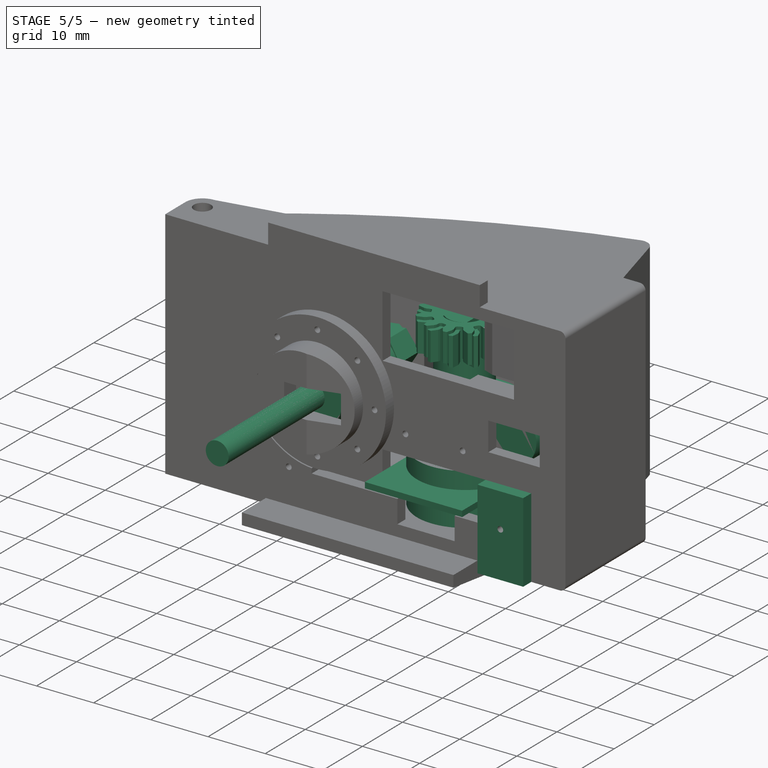
[diagram: stage 5 of 5 — iso view after this stage's code; geometry added in this stage tinted green]
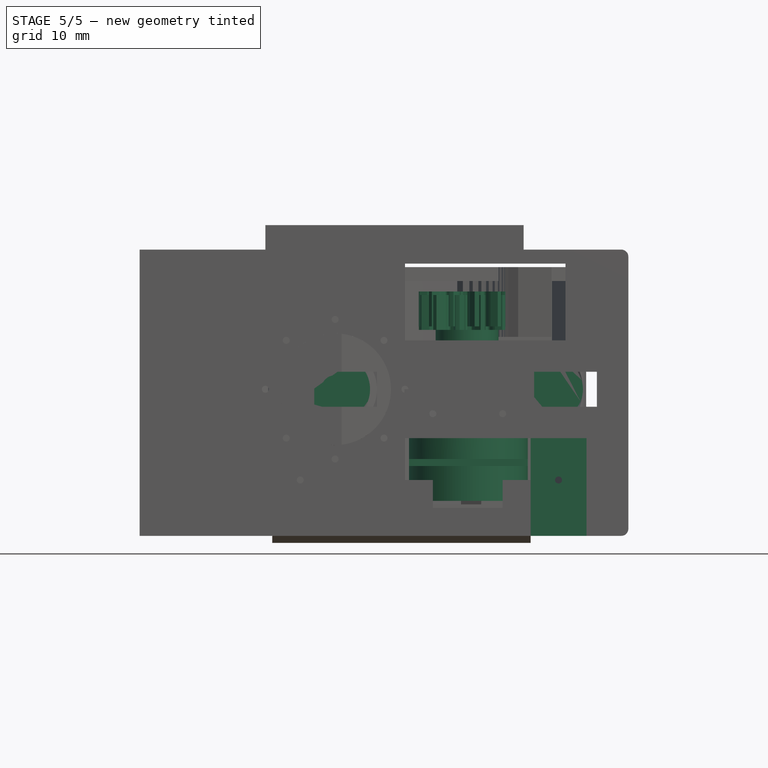
[diagram: stage 5 of 5 — front view after this stage's code; geometry added in this stage tinted green]
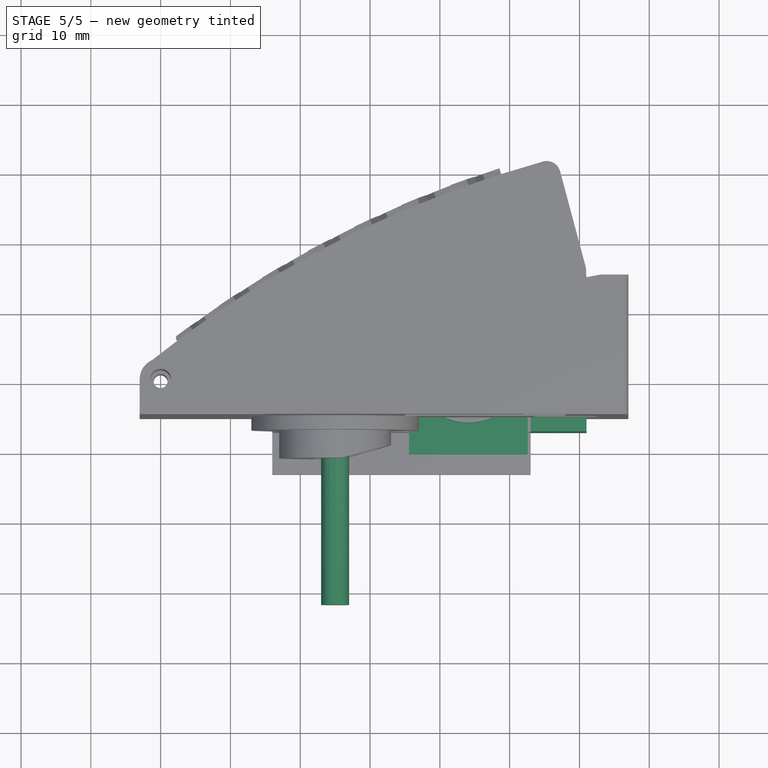
[diagram: stage 5 of 5 — top view after this stage's code; geometry added in this stage tinted green]
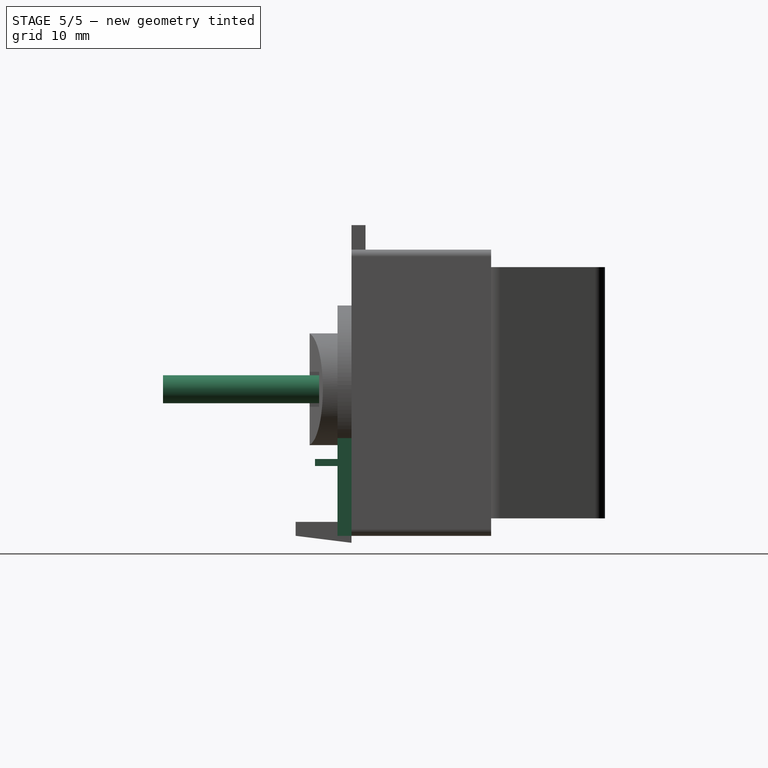
[diagram: stage 5 of 5 — right view after this stage's code; geometry added in this stage tinted green]
FEATURE [PartDesign::Body] Body005
  Group = -> [Sketch047,Pad005]
  Origin = -> Origin005
  Placement = pos=(0,0,2) rot=(0,0,1;0rad)
  Tip = -> Pad005
FEATURE [Sketcher::SketchObject] Sketch054
  MapMode = 5
  Support = -> [XY_Plane006]
  sketch-geometry (6):
    g0: ArcOfCircle CenterX=43.9111 CenterY=2.75855 CenterZ=0 NormalX=0 NormalY=0 NormalZ=1 AngleXU=-3.14159 Radius=2.50246 StartAngle=0 EndAngle=3.14159
    g1: LineSegment StartX=34.9111 StartY=2.75855 StartZ=0 EndX=34.9111 EndY=-3 EndZ=0
    g2: LineSegment StartX=34.9111 StartY=-3 StartZ=0 EndX=52.9111 EndY=-3 EndZ=0
    g3: LineSegment StartX=52.9111 StartY=2.75855 StartZ=0 EndX=46.4136 EndY=2.75855 EndZ=0
    g4: LineSegment StartX=41.4086 StartY=2.75855 StartZ=0 EndX=34.9111 EndY=2.75855 EndZ=0
    g5: LineSegment StartX=52.9111 StartY=-3 StartZ=0 EndX=52.9111 EndY=2.75855 EndZ=0
  constraints (6):
    c: Coincident(g1,g2)
    c: Coincident(g1,g4)
    c: Coincident(g0,g4)
    c: Coincident(g0,g3)
    c: Coincident(g2,g5)
    c: Coincident(g3,g5)
FEATURE [Sketcher::SketchObject] Sketch059
  MapMode = 5
  Support = -> [XY_Plane007]
  sketch-geometry (4):
    g0: ArcOfCircle CenterX=43.9086 CenterY=2.75952 CenterZ=0 NormalX=0 NormalY=0 NormalZ=1 AngleXU=-3.14159 Radius=2.5 StartAngle=3.14121 EndAngle=6.28357
    g1: LineSegment StartX=46.4086 StartY=2.75855 StartZ=0 EndX=52.9111 EndY=2.7629 EndZ=0
    g2: LineSegment StartX=34.9111 StartY=2.7629 StartZ=0 EndX=41.4086 EndY=2.75855 EndZ=0
    g3: ArcOfCircle CenterX=43.9111 CenterY=2.75855 CenterZ=0 NormalX=0 NormalY=0 NormalZ=1 AngleXU=0 Radius=9 StartAngle=0.000483385 EndAngle=3.14111
  constraints (4):
    c: Coincident(g2,g3)
    c: Coincident(g0,g2)
    c: Coincident(g0,g1)
    c: Coincident(g1,g3)
FEATURE [Sketcher::SketchObject] Sketch064
  sketch-geometry (4):
    g0: LineSegment StartX=36.9111 StartY=1.26266 StartZ=0 EndX=36.9111 EndY=4.26266 EndZ=0
    g1: LineSegment StartX=34.9111 StartY=1.26266 StartZ=0 EndX=36.9111 EndY=1.26266 EndZ=0
    g2: LineSegment StartX=34.9111 StartY=4.26266 StartZ=0 EndX=34.9111 EndY=1.26266 EndZ=0
    g3: LineSegment StartX=36.9111 StartY=4.26266 StartZ=0 EndX=34.9111 EndY=4.26266 EndZ=0
  constraints (4):
    c: Coincident(g1,g2)
    c: Coincident(g2,g3)
    c: Coincident(g0,g1)
    c: Coincident(g0,g3)
FEATURE [Sketcher::SketchObject] Sketch065
  sketch-geometry (4):
    g0: LineSegment StartX=36.9111 StartY=1.26266 StartZ=0 EndX=36.9111 EndY=4.26266 EndZ=0
    g1: LineSegment StartX=34.9111 StartY=1.26266 StartZ=0 EndX=36.9111 EndY=1.26266 EndZ=0
    g2: LineSegment StartX=34.9111 StartY=4.26266 StartZ=0 EndX=34.9111 EndY=1.26266 EndZ=0
    g3: LineSegment StartX=36.9111 StartY=4.26266 StartZ=0 EndX=34.9111 EndY=4.26266 EndZ=0
  constraints (4):
    c: Coincident(g1,g2)
    c: Coincident(g2,g3)
    c: Coincident(g0,g1)
    c: Coincident(g0,g3)
FEATURE [PartDesign::Pad] Pad006
  Length = 7
  Length2 = 100
  Profile = -> Sketch054
  Type = 0
FEATURE [PartDesign::Pad] Pad007
  Length = 7
  Length2 = 100
  Profile = -> Sketch059
  Type = 0
FEATURE [PartDesign::Pocket] Pocket005
  BaseFeature = -> Pad007
  Length = 3
  Length2 = 100
  Profile = -> Sketch065
  Reversed = true
  Type = 0
FEATURE [PartDesign::Body] Body007
  Group = -> [Sketch059,Pad007,Sketch065,Pocket005]
  Origin = -> Origin007
  Placement = pos=(0,0,14) rot=(0,0,1;0rad)
  Tip = -> Pocket005
FEATURE [PartDesign::Pocket] Pocket006
  BaseFeature = -> Pad006
  Length = 3
  Length2 = 100
  Profile = -> Sketch064
  Reversed = true
  Type = 0
FEATURE [PartDesign::Body] Body006
  Group = -> [Sketch054,Pad006,Sketch064,Pocket006]
  Origin = -> Origin006
  Placement = pos=(0,0,14) rot=(0,0,1;0rad)
  Tip = -> Pocket006
FEATURE [Sketcher::SketchObject] Sketch067
  MapMode = 5
  Support = -> [XY_Plane009]
  sketch-geometry (1):
    g0: Circle CenterX=43.9112 CenterY=2.76266 CenterZ=0 NormalX=0 NormalY=0 NormalZ=-1 AngleXU=0 Radius=8.5
FEATURE [Sketcher::SketchObject] Sketch068
  Placement = pos=(0,0,3) rot=(0,0,1;0rad)
  sketch-geometry (4):
    g0: LineSegment StartX=35.4112 StartY=2.76266 StartZ=0 EndX=35.4112 EndY=-10.2373 EndZ=0
    g1: LineSegment StartX=52.4112 StartY=2.76266 StartZ=0 EndX=52.4112 EndY=-10.2373 EndZ=0
    g2: LineSegment StartX=35.4112 StartY=-10.2373 StartZ=0 EndX=52.4112 EndY=-10.2373 EndZ=0
    g3: LineSegment StartX=35.4112 StartY=2.76266 StartZ=0 EndX=52.4112 EndY=2.76266 EndZ=0
  constraints (4):
    c: Coincident(g0,g2)
    c: Coincident(g0,g3)
    c: Coincident(g1,g2)
    c: Coincident(g1,g3)
FEATURE [Sketcher::SketchObject] Sketch069
  sketch-geometry (4):
    g0: LineSegment StartX=50.9112 StartY=4.26266 StartZ=0 EndX=50.9112 EndY=1.26266 EndZ=0
    g1: LineSegment StartX=50.9112 StartY=1.26266 StartZ=0 EndX=52.9112 EndY=1.26266 EndZ=0
    g2: LineSegment StartX=52.9112 StartY=1.26266 StartZ=0 EndX=52.9112 EndY=4.26266 EndZ=0
    g3: LineSegment StartX=52.9112 StartY=4.26266 StartZ=0 EndX=50.9112 EndY=4.26266 EndZ=0
FEATURE [PartDesign::Pad] Pad009
  Length = 9
  Length2 = 100
  Profile = -> Sketch067
  Type = 0
FEATURE [PartDesign::Pad] Pad010
  BaseFeature = -> Pad009
  Length = 1
  Length2 = 3
  Offset = 6
  Profile = -> Sketch068
  Type = 0
FEATURE [PartDesign::Pad] Pad011
  BaseFeature = -> Pad010
  Length = 2.5
  Length2 = 100
  Profile = -> Sketch069
  Reversed = true
  Type = 0
FEATURE [PartDesign::Body] Body009
  Group = -> [Sketch067,Pad009,Sketch068,Pad010,Sketch069,Pad011]
  Origin = -> Origin009
  Tip = -> Pad011
FEATURE [Sketcher::SketchObject] Sketch070
  MapMode = 5
  Support = -> [XY_Plane009]
  sketch-geometry (2):
    g0: LineSegment StartX=41.9568 StartY=0.26313 StartZ=0 EndX=41.9597 EndY=5.25624 EndZ=0
    g1: ArcOfCircle CenterX=43.9111 CenterY=2.75855 CenterZ=0 NormalX=0 NormalY=0 NormalZ=1 AngleXU=0 Radius=3.16964 StartAngle=4.04799 EndAngle=8.51721
FEATURE [PartDesign::Pad] Pad012
  Length = 21
  Length2 = 100
  Profile = -> Sketch070
  Type = 0
FEATURE [PartDesign::Body] Body010
  Group = -> [Sketch070,Pad012]
  Origin = -> Origin010
  Placement = pos=(0,0,-21) rot=(0,0,1;0rad)
  Tip = -> Pad012
FEATURE [Part::MultiFuse] Fusion002  label="Pot"
  Placement = pos=(88,0,14) rot=(0,1,0;3.14159rad)
  Shapes = -> [Body010,Body009]
FEATURE [PartDesign::Body] Body011
  Group = -> [Sketch141,Pad013]
  Origin = -> Origin011
  Placement = pos=(0,0,28.5) rot=(0,0,1;0rad)
  Tip = -> Pad013
FEATURE [Sketcher::SketchObject] Sketch145
  MapMode = 5
  Support = -> [XY_Plane012]
  sketch-geometry (120):
    g0: LineSegment StartX=48.9399 StartY=3.67028 StartZ=0 EndX=49.4739 EndY=3.76764 EndZ=0
    g1: LineSegment StartX=49.4739 StartY=3.76764 StartZ=0 EndX=49.8153 EndY=3.92665 EndZ=0
    g2: LineSegment StartX=49.8153 StartY=3.92665 StartZ=0 EndX=50.6381 EndY=4.69849 EndZ=0
    g3: ArcOfCircle CenterX=43.9114 CenterY=2.76154 CenterZ=0 NormalX=0 NormalY=0 NormalZ=1 AngleXU=0 Radius=7 StartAngle=0.280366 EndAngle=0.368897
    g4: LineSegment StartX=50.4405 StartY=5.28565 StartZ=0 EndX=49.3184 EndY=5.40296 EndZ=0
    g5: LineSegment StartX=49.3184 StartY=5.40296 StartZ=0 EndX=48.9504 EndY=5.32324 EndZ=0
    g6: LineSegment StartX=48.9504 StartY=5.32324 StartZ=0 EndX=48.4662 EndY=5.07791 EndZ=0
    g7: ArcOfCircle CenterX=48.2962 CenterY=5.41217 CenterZ=0 NormalX=0 NormalY=0 NormalZ=1 AngleXU=3.14159 Radius=0.375 StartAngle=0.54615 EndAngle=2.04123
    g8: ArcOfCircle CenterX=43.9101 CenterY=2.76111 CenterZ=0 NormalX=0 NormalY=0 NormalZ=1 AngleXU=0 Radius=4.75 StartAngle=0.543476 EndAngle=0.629385
    g9: ArcOfCircle CenterX=48.0537 CenterY=5.77712 CenterZ=0 NormalX=0 NormalY=0 NormalZ=1 AngleXU=3.14159 Radius=0.375 StartAngle=5.41481 EndAngle=6.9099
    g10: LineSegment StartX=47.8114 StartY=6.06335 StartZ=0 EndX=48.2252 EndY=6.41468 EndZ=0
    g11: LineSegment StartX=48.2252 StartY=6.41468 StartZ=0 EndX=48.4414 EndY=6.72306 EndZ=0
    g12: LineSegment StartX=48.4414 StartY=6.72306 StartZ=0 EndX=48.768 EndY=7.80292 EndZ=0
    g13: ArcOfCircle CenterX=43.911 CenterY=2.76213 CenterZ=0 NormalX=0 NormalY=0 NormalZ=1 AngleXU=0 Radius=7 StartAngle=0.803965 EndAngle=0.892495
    g14: LineSegment StartX=48.3033 StartY=8.21261 StartZ=0 EndX=47.2729 EndY=7.75317 EndZ=0
    g15: LineSegment StartX=47.2729 StartY=7.75317 StartZ=0 EndX=46.9941 EndY=7.50011 EndZ=0
    g16: LineSegment StartX=46.9941 StartY=7.50011 StartZ=0 EndX=46.6974 EndY=7.04553 EndZ=0
    g17: ArcOfCircle CenterX=46.383 CenterY=7.25002 CenterZ=0 NormalX=0 NormalY=0 NormalZ=1 AngleXU=3.14159 Radius=0.375 StartAngle=1.06975 EndAngle=2.56483
    g18: ArcOfCircle CenterX=43.9101 CenterY=2.76111 CenterZ=0 NormalX=0 NormalY=0 NormalZ=1 AngleXU=0 Radius=4.75 StartAngle=1.06707 EndAngle=1.15298
    g19: ArcOfCircle CenterX=45.9906 CenterY=7.44484 CenterZ=0 NormalX=0 NormalY=0 NormalZ=1 AngleXU=3.14159 Radius=0.375 StartAngle=5.93841 EndAngle=7.4335
    g20: LineSegment StartX=45.6376 StartY=7.57158 StartZ=0 EndX=45.8203 EndY=8.08276 EndZ=0
    g21: LineSegment StartX=45.8203 StartY=8.08276 StartZ=0 EndX=45.8533 EndY=8.45788 EndZ=0
    g22: LineSegment StartX=45.8533 StartY=8.45788 StartZ=0 EndX=45.5963 EndY=9.5564 EndZ=0
    g23: ArcOfCircle CenterX=43.9104 CenterY=2.76245 CenterZ=0 NormalX=0 NormalY=0 NormalZ=1 AngleXU=0 Radius=7 StartAngle=1.32756 EndAngle=1.41609
    g24: LineSegment StartX=44.989 StartY=9.67885 StartZ=0 EndX=44.3264 EndY=8.76576 EndZ=0
    g25: LineSegment StartX=44.3264 StartY=8.76576 StartZ=0 EndX=44.2114 EndY=8.40718 EndZ=0
    g26: LineSegment StartX=44.2114 StartY=8.40718 StartZ=0 EndX=44.1817 EndY=7.86515 EndZ=0
    g27: ArcOfCircle CenterX=43.8073 CenterY=7.88507 CenterZ=0 NormalX=0 NormalY=0 NormalZ=1 AngleXU=3.14159 Radius=0.375 StartAngle=1.59335 EndAngle=3.08843
    g28: ArcOfCircle CenterX=43.9101 CenterY=2.76111 CenterZ=0 NormalX=0 NormalY=0 NormalZ=1 AngleXU=0 Radius=4.75 StartAngle=1.59067 EndAngle=1.67658
    g29: ArcOfCircle CenterX=43.37 CenterY=7.85756 CenterZ=0 NormalX=0 NormalY=0 NormalZ=1 AngleXU=3.14159 Radius=0.375 StartAngle=0.178824 EndAngle=1.67391
    g30: LineSegment StartX=43.001 StartY=7.79086 StartZ=0 EndX=42.9036 EndY=8.3249 EndZ=0
    g31: LineSegment StartX=42.9036 StartY=8.3249 StartZ=0 EndX=42.7446 EndY=8.66624 EndZ=0
    g32: LineSegment StartX=42.7446 StartY=8.66624 StartZ=0 EndX=41.9727 EndY=9.48909 EndZ=0
    g33: ArcOfCircle CenterX=43.9097 CenterY=2.76241 CenterZ=0 NormalX=0 NormalY=0 NormalZ=1 AngleXU=0 Radius=7 StartAngle=1.85116 EndAngle=1.93969
    g34: LineSegment StartX=41.3856 StartY=9.29149 StartZ=0 EndX=41.2683 EndY=8.16941 EndZ=0
    g35: LineSegment StartX=41.2683 StartY=8.16941 StartZ=0 EndX=41.348 EndY=7.80138 EndZ=0
    g36: LineSegment StartX=41.348 StartY=7.80138 StartZ=0 EndX=41.5933 EndY=7.31714 EndZ=0
    g37: ArcOfCircle CenterX=41.2591 CenterY=7.14716 CenterZ=0 NormalX=0 NormalY=0 NormalZ=1 AngleXU=3.14159 Radius=0.375 StartAngle=2.11695 EndAngle=3.61203
    g38: ArcOfCircle CenterX=43.9101 CenterY=2.76111 CenterZ=0 NormalX=0 NormalY=0 NormalZ=1 AngleXU=0 Radius=4.75 StartAngle=2.11427 EndAngle=2.20018
    g39: ArcOfCircle CenterX=40.8941 CenterY=6.90469 CenterZ=0 NormalX=0 NormalY=0 NormalZ=1 AngleXU=3.14159 Radius=0.375 StartAngle=0.702423 EndAngle=2.19751
    g40: LineSegment StartX=40.6079 StartY=6.66242 StartZ=0 EndX=40.2565 EndY=7.07623 EndZ=0
    g41: LineSegment StartX=40.2565 StartY=7.07623 StartZ=0 EndX=39.9482 EndY=7.29234 EndZ=0
    g42: LineSegment StartX=39.9482 StartY=7.29234 StartZ=0 EndX=38.8683 EndY=7.61901 EndZ=0
    g43: ArcOfCircle CenterX=43.9091 CenterY=2.76201 CenterZ=0 NormalX=0 NormalY=0 NormalZ=1 AngleXU=0 Radius=7 StartAngle=2.37476 EndAngle=2.46329
    g44: LineSegment StartX=38.4586 StartY=7.15431 StartZ=0 EndX=38.9181 EndY=6.12391 EndZ=0
    g45: LineSegment StartX=38.9181 StartY=6.12391 StartZ=0 EndX=39.1711 EndY=5.84505 EndZ=0
    g46: LineSegment StartX=39.1711 StartY=5.84505 StartZ=0 EndX=39.6257 EndY=5.54834 EndZ=0
    g47: ArcOfCircle CenterX=39.4212 CenterY=5.23401 CenterZ=0 NormalX=0 NormalY=0 NormalZ=1 AngleXU=3.14159 Radius=0.375 StartAngle=2.64054 EndAngle=4.13563
    g48: ArcOfCircle CenterX=43.9101 CenterY=2.76111 CenterZ=0 NormalX=0 NormalY=0 NormalZ=1 AngleXU=0 Radius=4.75 StartAngle=2.63787 EndAngle=2.72378
    g49: ArcOfCircle CenterX=39.2264 CenterY=4.84155 CenterZ=0 NormalX=0 NormalY=0 NormalZ=1 AngleXU=3.14159 Radius=0.375 StartAngle=1.22602 EndAngle=2.72111
    g50: LineSegment StartX=39.0996 StartY=4.48862 StartZ=0 EndX=38.5885 EndY=4.67132 EndZ=0
    g51: LineSegment StartX=38.5885 StartY=4.67132 StartZ=0 EndX=38.2134 EndY=4.70429 EndZ=0
    g52: LineSegment StartX=38.2134 StartY=4.70429 StartZ=0 EndX=37.1148 EndY=4.44727 EndZ=0
    g53: ArcOfCircle CenterX=43.9088 CenterY=2.76138 CenterZ=0 NormalX=0 NormalY=0 NormalZ=1 AngleXU=0 Radius=7 StartAngle=2.89836 EndAngle=2.98689
    g54: LineSegment StartX=36.9924 StartY=3.83998 StartZ=0 EndX=37.9055 EndY=3.17735 EndZ=0
    g55: LineSegment StartX=37.9055 StartY=3.17735 StartZ=0 EndX=38.2641 EndY=3.06237 EndZ=0
    g56: LineSegment StartX=38.2641 StartY=3.06237 StartZ=0 EndX=38.8061 EndY=3.03271 EndZ=0
    g57: ArcOfCircle CenterX=38.7862 CenterY=2.65824 CenterZ=0 NormalX=0 NormalY=0 NormalZ=1 AngleXU=3.14159 Radius=0.375 StartAngle=3.16414 EndAngle=4.65923
    g58: ArcOfCircle CenterX=43.9101 CenterY=2.76111 CenterZ=0 NormalX=0 NormalY=0 NormalZ=1 AngleXU=0 Radius=4.75 StartAngle=3.16147 EndAngle=3.24738
    g59: ArcOfCircle CenterX=38.8137 CenterY=2.22096 CenterZ=0 NormalX=0 NormalY=0 NormalZ=1 AngleXU=3.14159 Radius=0.375 StartAngle=1.74962 EndAngle=3.24471
    g60: LineSegment StartX=38.8804 StartY=1.85194 StartZ=0 EndX=38.3463 EndY=1.75458 EndZ=0
    g61: LineSegment StartX=38.3463 StartY=1.75458 StartZ=0 EndX=38.005 EndY=1.59557 EndZ=0
    g62: LineSegment StartX=38.005 StartY=1.59557 StartZ=0 EndX=37.1821 EndY=0.823719 EndZ=0
    g63: ArcOfCircle CenterX=43.9088 CenterY=2.76067 CenterZ=0 NormalX=0 NormalY=0 NormalZ=1 AngleXU=0 Radius=7 StartAngle=3.42196 EndAngle=3.51049
    g64: LineSegment StartX=37.3797 StartY=0.236564 StartZ=0 EndX=38.5018 EndY=0.119253 EndZ=0
    g65: LineSegment StartX=38.5018 StartY=0.119253 StartZ=0 EndX=38.8698 EndY=0.198976 EndZ=0
    g66: LineSegment StartX=38.8698 StartY=0.198976 StartZ=0 EndX=39.3541 EndY=0.444302 EndZ=0
    g67: ArcOfCircle CenterX=39.5241 CenterY=0.110039 CenterZ=0 NormalX=0 NormalY=0 NormalZ=1 AngleXU=3.14159 Radius=0.375 StartAngle=3.68774 EndAngle=5.18283
    g68: ArcOfCircle CenterX=43.9101 CenterY=2.76111 CenterZ=0 NormalX=0 NormalY=0 NormalZ=1 AngleXU=0 Radius=4.75 StartAngle=3.68507 EndAngle=3.77098
    g69: ArcOfCircle CenterX=39.7665 CenterY=-0.254903 CenterZ=0 NormalX=0 NormalY=0 NormalZ=1 AngleXU=3.14159 Radius=0.375 StartAngle=2.27322 EndAngle=3.7683
    g70: LineSegment StartX=40.0088 StartY=-0.541133 StartZ=0 EndX=39.595 EndY=-0.892471 EndZ=0
    g71: LineSegment StartX=39.595 StartY=-0.892471 StartZ=0 EndX=39.3789 EndY=-1.20085 EndZ=0
    g72: LineSegment StartX=39.3789 StartY=-1.20085 StartZ=0 EndX=39.0522 EndY=-2.28071 EndZ=0
    g73: ArcOfCircle CenterX=43.9092 CenterY=2.76008 CenterZ=0 NormalX=0 NormalY=0 NormalZ=1 AngleXU=0 Radius=7 StartAngle=3.94556 EndAngle=4.03409
    g74: LineSegment StartX=39.5169 StartY=-2.6904 StartZ=0 EndX=40.5473 EndY=-2.23096 EndZ=0
    g75: LineSegment StartX=40.5473 StartY=-2.23096 StartZ=0 EndX=40.8262 EndY=-1.9779 EndZ=0
    g76: LineSegment StartX=40.8262 StartY=-1.9779 StartZ=0 EndX=41.1229 EndY=-1.52332 EndZ=0
    g77: ArcOfCircle CenterX=41.4372 CenterY=-1.72781 CenterZ=0 NormalX=0 NormalY=0 NormalZ=1 AngleXU=3.14159 Radius=0.375 StartAngle=4.21134 EndAngle=5.70643
    g78: ArcOfCircle CenterX=43.9101 CenterY=2.76111 CenterZ=0 NormalX=0 NormalY=0 NormalZ=1 AngleXU=0 Radius=4.75 StartAngle=4.20867 EndAngle=4.29458
    g79: ArcOfCircle CenterX=41.8297 CenterY=-1.92263 CenterZ=0 NormalX=0 NormalY=0 NormalZ=1 AngleXU=3.14159 Radius=0.375 StartAngle=2.79682 EndAngle=4.2919
    g80: LineSegment StartX=42.1826 StartY=-2.04937 StartZ=0 EndX=41.9999 EndY=-2.56054 EndZ=0
    g81: LineSegment StartX=41.9999 StartY=-2.56054 StartZ=0 EndX=41.9669 EndY=-2.93566 EndZ=0
    g82: LineSegment StartX=41.9669 StartY=-2.93566 StartZ=0 EndX=42.224 EndY=-4.03419 EndZ=0
    g83: ArcOfCircle CenterX=43.9099 CenterY=2.75976 CenterZ=0 NormalX=0 NormalY=0 NormalZ=1 AngleXU=0 Radius=7 StartAngle=4.46916 EndAngle=4.55769
    g84: LineSegment StartX=42.8313 StartY=-4.15664 StartZ=0 EndX=43.4939 EndY=-3.24355 EndZ=0
    g85: LineSegment StartX=43.4939 StartY=-3.24355 StartZ=0 EndX=43.6089 EndY=-2.88496 EndZ=0
    g86: LineSegment StartX=43.6089 StartY=-2.88496 StartZ=0 EndX=43.6385 EndY=-2.34293 EndZ=0
    g87: ArcOfCircle CenterX=44.013 CenterY=-2.36286 CenterZ=0 NormalX=0 NormalY=0 NormalZ=1 AngleXU=3.14159 Radius=0.375 StartAngle=4.73494 EndAngle=6.23003
    g88: ArcOfCircle CenterX=43.9101 CenterY=2.76111 CenterZ=0 NormalX=0 NormalY=0 NormalZ=1 AngleXU=0 Radius=4.75 StartAngle=4.73227 EndAngle=4.81818
    g89: ArcOfCircle CenterX=44.4503 CenterY=-2.33535 CenterZ=0 NormalX=0 NormalY=0 NormalZ=1 AngleXU=3.14159 Radius=0.375 StartAngle=3.32042 EndAngle=4.8155
    g90: LineSegment StartX=44.8193 StartY=-2.26865 StartZ=0 EndX=44.9167 EndY=-2.80268 EndZ=0
    g91: LineSegment StartX=44.9167 StartY=-2.80268 StartZ=0 EndX=45.0757 EndY=-3.14403 EndZ=0
    g92: LineSegment StartX=45.0757 StartY=-3.14403 StartZ=0 EndX=45.8475 EndY=-3.96687 EndZ=0
    g93: ArcOfCircle CenterX=43.9106 CenterY=2.75981 CenterZ=0 NormalX=0 NormalY=0 NormalZ=1 AngleXU=0 Radius=7 StartAngle=4.99275 EndAngle=5.08129
    g94: LineSegment StartX=46.4347 StartY=-3.76927 StartZ=0 EndX=46.552 EndY=-2.6472 EndZ=0
    g95: LineSegment StartX=46.552 StartY=-2.6472 StartZ=0 EndX=46.4723 EndY=-2.27917 EndZ=0
    g96: LineSegment StartX=46.4723 StartY=-2.27917 StartZ=0 EndX=46.2269 EndY=-1.79492 EndZ=0
    g97: ArcOfCircle CenterX=46.5612 CenterY=-1.62495 CenterZ=0 NormalX=0 NormalY=0 NormalZ=1 AngleXU=3.14159 Radius=0.375 StartAngle=5.25854 EndAngle=6.75362
    g98: ArcOfCircle CenterX=43.9101 CenterY=2.76111 CenterZ=0 NormalX=0 NormalY=0 NormalZ=1 AngleXU=0 Radius=4.75 StartAngle=5.25586 EndAngle=5.34177
    g99: ArcOfCircle CenterX=46.9261 CenterY=-1.38248 CenterZ=0 NormalX=0 NormalY=0 NormalZ=1 AngleXU=3.14159 Radius=0.375 StartAngle=3.84402 EndAngle=5.3391
    g100: LineSegment StartX=47.2124 StartY=-1.1402 StartZ=0 EndX=47.5637 EndY=-1.55401 EndZ=0
    g101: LineSegment StartX=47.5637 StartY=-1.55401 StartZ=0 EndX=47.8721 EndY=-1.77012 EndZ=0
    g102: LineSegment StartX=47.8721 StartY=-1.77012 StartZ=0 EndX=48.9519 EndY=-2.0968 EndZ=0
    g103: ArcOfCircle CenterX=43.9112 CenterY=2.7602 CenterZ=0 NormalX=0 NormalY=0 NormalZ=1 AngleXU=0 Radius=7 StartAngle=5.51635 EndAngle=5.60488
    g104: LineSegment StartX=49.3616 StartY=-1.6321 StartZ=0 EndX=48.9022 EndY=-0.601694 EndZ=0
    g105: LineSegment StartX=48.9022 StartY=-0.601694 StartZ=0 EndX=48.6491 EndY=-0.322833 EndZ=0
    g106: LineSegment StartX=48.6491 StartY=-0.322833 StartZ=0 EndX=48.1945 EndY=-0.0261301 EndZ=0
    g107: ArcOfCircle CenterX=48.399 CenterY=0.288208 CenterZ=0 NormalX=0 NormalY=0 NormalZ=1 AngleXU=3.14159 Radius=0.375 StartAngle=5.78214 EndAngle=7.27722
    g108: ArcOfCircle CenterX=43.9101 CenterY=2.76111 CenterZ=0 NormalX=0 NormalY=0 NormalZ=1 AngleXU=0 Radius=4.75 StartAngle=5.77946 EndAngle=5.86537
    g109: ArcOfCircle CenterX=48.5939 CenterY=0.680661 CenterZ=0 NormalX=0 NormalY=0 NormalZ=1 AngleXU=3.14159 Radius=0.375 StartAngle=4.36761 EndAngle=5.8627
    g110: LineSegment StartX=48.7206 StartY=1.03359 StartZ=0 EndX=49.2318 EndY=0.850893 EndZ=0
    g111: LineSegment StartX=49.2318 StartY=0.850893 StartZ=0 EndX=49.6069 EndY=0.817925 EndZ=0
    g112: LineSegment StartX=49.6069 StartY=0.817925 StartZ=0 EndX=50.7054 EndY=1.07494 EndZ=0
    g113: ArcOfCircle CenterX=43.9115 CenterY=2.76084 CenterZ=0 NormalX=0 NormalY=0 NormalZ=1 AngleXU=0 Radius=7 StartAngle=6.03995 EndAngle=6.12848
    g114: LineSegment StartX=50.8279 StartY=1.68224 StartZ=0 EndX=49.9148 EndY=2.34487 EndZ=0
    g115: LineSegment StartX=49.9148 StartY=2.34487 StartZ=0 EndX=49.5562 EndY=2.45984 EndZ=0
    g116: LineSegment StartX=49.5562 StartY=2.45984 StartZ=0 EndX=49.0142 EndY=2.4895 EndZ=0
    g117: ArcOfCircle CenterX=49.0341 CenterY=2.86397 CenterZ=0 NormalX=0 NormalY=0 NormalZ=1 AngleXU=3.14159 Radius=0.375 StartAngle=0.0225508 EndAngle=1.51764
    g118: ArcOfCircle CenterX=43.9101 CenterY=2.76111 CenterZ=0 NormalX=0 NormalY=0 NormalZ=1 AngleXU=0 Radius=4.75 StartAngle=0.0198771 EndAngle=0.105787
    g119: ArcOfCircle CenterX=49.0066 CenterY=3.30126 CenterZ=0 NormalX=0 NormalY=0 NormalZ=1 AngleXU=3.14159 Radius=0.375 StartAngle=4.89121 EndAngle=6.3863
FEATURE [PartDesign::Pad] Pad014
  Length = 5
  Length2 = 100
  Profile = -> Sketch145
  Type = 0
FEATURE [PartDesign::Body] Body012
  Group = -> [Sketch145,Pad014]
  Origin = -> Origin012
  Placement = pos=(0,0,4) rot=(0,0,1;0rad)
  Tip = -> Pad014
FEATURE [Sketcher::SketchObject] Sketch146
  MapMode = 5
  Support = -> [XY_Plane013]
  sketch-geometry (2):
    g0: LineSegment StartX=41.9568 StartY=0.26313 StartZ=0 EndX=41.9597 EndY=5.25624 EndZ=0
    g1: ArcOfCircle CenterX=43.9111 CenterY=2.75855 CenterZ=0 NormalX=0 NormalY=0 NormalZ=1 AngleXU=0 Radius=3.16964 StartAngle=4.04799 EndAngle=8.51721
FEATURE [PartDesign::Pad] Pad015
  Length = 12
  Length2 = 100
  Profile = -> Sketch146
  Type = 0
FEATURE [PartDesign::Body] Body013
  Group = -> [Sketch146,Pad015]
  Origin = -> Origin013
  Placement = pos=(0,0,4) rot=(0,0,1;0rad)
  Tip = -> Pad015
FEATURE [Part::Cut] Cut001  label="Old_Pinion"
  Base = -> Body012
  Placement = pos=(0,0,25.5) rot=(0,0,1;0rad)
  Tool = -> Body013
FEATURE [Part::Cylinder] Cylinder
  Angle = 360
  AttacherType = Attacher::AttachEngine3D
  Height = 18
  Placement = pos=(56,-3,21) rot=(-1,0,0;1.5708rad)
  Radius = 4.5
FEATURE [PartDesign::Body] Body015
  Group = -> [Sketch152,Pad017]
  Origin = -> Origin015
  Placement = pos=(16,0,0) rot=(0,0,1;0rad)
  Tip = -> Pad017
FEATURE [Part::Box] Box002  label="Cube002"
  AttacherType = Attacher::AttachEngine3D
  Height = 14
  Length = 8
  Placement = pos=(53,-7,0) rot=(0,0,1;0rad)
  Width = 2
FEATURE [Part::MultiFuse] Fusion006
  Shapes = -> [Box002,Box003,Cut002]
FEATURE [Part::Cut] Cut003  label="MountClip"
  Base = -> Fusion006
  Tool = -> Fusion007
FEATURE [Part::Cylinder] Cylinder005
  Angle = 360
  AttacherType = Attacher::AttachEngine3D
  Height = 40
  Placement = pos=(56,-27,21) rot=(-1,0,0;1.5708rad)
  Radius = 2
FEATURE [Part::RegularPolygon] RegularPolygon  label="Regular polygon"
  AttacherType = Attacher::AttachEngine3D
  Circumradius = 3.9
  Polygon = 6
FEATURE [Part::Extrusion] Extrude
  Base = -> RegularPolygon
  Dir = (0,0,1)
  DirMode = 2
  FaceMakerClass = Part::FaceMakerBullseye
  LengthFwd = 3
  LengthRev = 0
  Placement = pos=(56,16,21) rot=(1,0,0;1.5708rad)
  Solid = true
  Symmetric = false
FEATURE [Part::MultiFuse] Fusion009  label="Bolt"
  Placement = pos=(-31,-5,0) rot=(0,0,1;0rad)
  Shapes = -> [Extrude,Cylinder005]
FEATURE [Part::Cylinder] Cylinder007
  Angle = 360
  AttacherType = Attacher::AttachEngine3D
  Height = 13
  Placement = pos=(56,-3,21) rot=(-1,0,0;1.5708rad)
  Radius = 5
FEATURE [Part::Cut] Cut004  label="PotMountB"
  Base = -> Body006
  Tool = -> Cylinder007
FEATURE [Part::Cylinder] Cylinder008
  Angle = 360
  AttacherType = Attacher::AttachEngine3D
  Height = 13
  Placement = pos=(56,-3,21) rot=(-1,0,0;1.5708rad)
  Radius = 5
FEATURE [Part::Cut] Cut005
  Base = -> Body007
  Tool = -> Cylinder008
FEATURE [Part::Cylinder] Cylinder017
  Angle = 360
  AttacherType = Attacher::AttachEngine3D
  Height = 20
  Placement = pos=(39,12,17.5) rot=(1,0,0;1.5708rad)
  Radius = 0.5
FEATURE [Part::Cylinder] Cylinder018
  Angle = 360
  AttacherType = Attacher::AttachEngine3D
  Height = 20
  Placement = pos=(49,12,17.5) rot=(1,0,0;1.5708rad)
  Radius = 0.5
FEATURE [Part::MultiFuse] Fusion018
  Shapes = -> [Cylinder018,Cylinder017]
FEATURE [Part::Cut] Cut011  label="PotClamp"
  Base = -> Cut005
  Tool = -> Fusion018
FEATURE [Part::Cylinder] Cylinder022
  Angle = 360
  AttacherType = Attacher::AttachEngine3D
  Height = 10
  Placement = pos=(43.9,2.7,12) rot=(0,0,1;0rad)
  Radius = 3.5
FEATURE [Part::Cylinder] Cylinder023
  Angle = 360
  AttacherType = Attacher::AttachEngine3D
  Height = 12
  Radius = 4.5
FEATURE [Sketcher::SketchObject] Sketch153  label="d_3.275"
  MapMode = 5
  Support = -> [XY_Plane017]
  sketch-geometry (2):
    g0: ArcOfCircle CenterX=-0.000906258 CenterY=-0.00102795 CenterZ=0 NormalX=0 NormalY=0 NormalZ=1 AngleXU=0 Radius=3.275 StartAngle=4.08442 EndAngle=8.48195
    g1: LineSegment StartX=-1.92498 StartY=2.64917 StartZ=0 EndX=-1.92498 EndY=-2.65123 EndZ=0
  constraints (2):
    c: Coincident(g0,g1)
    c: Coincident(g0,g1)
FEATURE [PartDesign::Pad] Pad018
  Length = 12
  Length2 = 100
  Profile = -> Sketch153
  Type = 0
FEATURE [PartDesign::Body] Body016  label="D_3.275"
  Group = -> [Sketch153,Pad018]
  Origin = -> Origin017
  Tip = -> Pad018
FEATURE [Sketcher::SketchObject] Sketch154
  MapMode = 5
  Support = -> [XY_Plane016]
  sketch-geometry (120):
    g0: LineSegment StartX=5.56245 StartY=1.0068 StartZ=0 EndX=5.90379 EndY=1.16581 EndZ=0
    g1: LineSegment StartX=5.90379 StartY=1.16581 StartZ=0 EndX=6.72664 EndY=1.93766 EndZ=0
    g2: ArcOfCircle CenterX=-4.45416e-05 CenterY=0.000707969 CenterZ=0 NormalX=0 NormalY=0 NormalZ=1 AngleXU=0 Radius=7 StartAngle=0.280366 EndAngle=0.368897
    g3: LineSegment StartX=6.52904 StartY=2.52481 StartZ=0 EndX=5.40696 EndY=2.64212 EndZ=0
    g4: LineSegment StartX=5.40696 StartY=2.64212 StartZ=0 EndX=5.03893 EndY=2.5624 EndZ=0
    g5: LineSegment StartX=5.03893 StartY=2.5624 StartZ=0 EndX=4.55469 EndY=2.31707 EndZ=0
    g6: ArcOfCircle CenterX=4.38471 CenterY=2.65134 CenterZ=0 NormalX=0 NormalY=0 NormalZ=1 AngleXU=3.14159 Radius=0.375 StartAngle=0.54615 EndAngle=2.04123
    g7: ArcOfCircle CenterX=-0.00134336 CenterY=0.000270869 CenterZ=0 NormalX=0 NormalY=0 NormalZ=1 AngleXU=0 Radius=4.75 StartAngle=0.543476 EndAngle=0.629385
    g8: ArcOfCircle CenterX=4.14224 CenterY=3.01628 CenterZ=0 NormalX=0 NormalY=0 NormalZ=1 AngleXU=3.14159 Radius=0.375 StartAngle=5.41481 EndAngle=6.9099
    g9: LineSegment StartX=3.89997 StartY=3.30251 StartZ=0 EndX=4.31378 EndY=3.65385 EndZ=0
    g10: LineSegment StartX=4.31378 StartY=3.65385 StartZ=0 EndX=4.52989 EndY=3.96223 EndZ=0
    g11: LineSegment StartX=4.52989 StartY=3.96223 StartZ=0 EndX=4.85656 EndY=5.04209 EndZ=0
    g12: ArcOfCircle CenterX=-0.0004371 CenterY=0.00129882 CenterZ=0 NormalX=0 NormalY=0 NormalZ=1 AngleXU=0 Radius=7 StartAngle=0.803965 EndAngle=0.892495
    g13: LineSegment StartX=4.39186 StartY=5.45178 StartZ=0 EndX=3.36146 EndY=4.99233 EndZ=0
    g14: LineSegment StartX=3.36146 StartY=4.99233 StartZ=0 EndX=3.0826 EndY=4.73928 EndZ=0
    g15: LineSegment StartX=3.0826 StartY=4.73928 StartZ=0 EndX=2.78589 EndY=4.2847 EndZ=0
    g16: ArcOfCircle CenterX=2.47156 CenterY=4.48919 CenterZ=0 NormalX=0 NormalY=0 NormalZ=1 AngleXU=3.14159 Radius=0.375 StartAngle=1.06975 EndAngle=2.56483
    g17: ArcOfCircle CenterX=-0.00134336 CenterY=0.000270868 CenterZ=0 NormalX=0 NormalY=0 NormalZ=1 AngleXU=0 Radius=4.75 StartAngle=1.06707 EndAngle=1.15298
    g18: ArcOfCircle CenterX=2.0791 CenterY=4.684 CenterZ=0 NormalX=0 NormalY=0 NormalZ=1 AngleXU=3.14159 Radius=0.375 StartAngle=5.93841 EndAngle=7.4335
    g19: LineSegment StartX=1.72617 StartY=4.81075 StartZ=0 EndX=1.90887 EndY=5.32192 EndZ=0
    g20: LineSegment StartX=1.90887 StartY=5.32192 StartZ=0 EndX=1.94184 EndY=5.69704 EndZ=0
    g21: LineSegment StartX=1.94184 StartY=5.69704 StartZ=0 EndX=1.68482 EndY=6.79557 EndZ=0
    g22: ArcOfCircle CenterX=-0.00107249 CenterY=0.00161423 CenterZ=0 NormalX=0 NormalY=0 NormalZ=1 AngleXU=0 Radius=7 StartAngle=1.32756 EndAngle=1.41609
    g23: LineSegment StartX=1.07753 StartY=6.91802 StartZ=0 EndX=0.414896 EndY=6.00492 EndZ=0
    g24: LineSegment StartX=0.414896 StartY=6.00492 StartZ=0 EndX=0.299923 EndY=5.64634 EndZ=0
    g25: LineSegment StartX=0.299923 StartY=5.64634 StartZ=0 EndX=0.270261 EndY=5.10431 EndZ=0
    g26: ArcOfCircle CenterX=-0.104209 CenterY=5.12424 CenterZ=0 NormalX=0 NormalY=0 NormalZ=1 AngleXU=3.14159 Radius=0.375 StartAngle=1.59335 EndAngle=3.08843
    g27: ArcOfCircle CenterX=-0.00134336 CenterY=0.000270869 CenterZ=0 NormalX=0 NormalY=0 NormalZ=1 AngleXU=0 Radius=4.75 StartAngle=1.59067 EndAngle=1.67658
    g28: ArcOfCircle CenterX=-0.541492 CenterY=5.09673 CenterZ=0 NormalX=0 NormalY=0 NormalZ=1 AngleXU=3.14159 Radius=0.375 StartAngle=0.178824 EndAngle=1.67391
    g29: LineSegment StartX=-0.910512 StartY=5.03002 StartZ=0 EndX=-1.00787 EndY=5.56406 EndZ=0
    g30: LineSegment StartX=-1.00787 StartY=5.56406 StartZ=0 EndX=-1.16688 EndY=5.90541 EndZ=0
    g31: LineSegment StartX=-1.16688 StartY=5.90541 StartZ=0 EndX=-1.93873 EndY=6.72825 EndZ=0
    g32: ArcOfCircle CenterX=-0.00178046 CenterY=0.00156969 CenterZ=0 NormalX=0 NormalY=0 NormalZ=1 AngleXU=0 Radius=7 StartAngle=1.85116 EndAngle=1.93969
    g33: LineSegment StartX=-2.52589 StartY=6.53065 StartZ=0 EndX=-2.6432 EndY=5.40857 EndZ=0
    g34: LineSegment StartX=-2.6432 StartY=5.40857 StartZ=0 EndX=-2.56347 EndY=5.04054 EndZ=0
    g35: LineSegment StartX=-2.56347 StartY=5.04054 StartZ=0 EndX=-2.31815 EndY=4.5563 EndZ=0
    g36: ArcOfCircle CenterX=-2.65241 CenterY=4.38632 CenterZ=0 NormalX=0 NormalY=0 NormalZ=1 AngleXU=3.14159 Radius=0.375 StartAngle=2.11695 EndAngle=3.61203
    g37: ArcOfCircle CenterX=-0.00134336 CenterY=0.000270869 CenterZ=0 NormalX=0 NormalY=0 NormalZ=1 AngleXU=0 Radius=4.75 StartAngle=2.11427 EndAngle=2.20018
    g38: ArcOfCircle CenterX=-3.01735 CenterY=4.14386 CenterZ=0 NormalX=0 NormalY=0 NormalZ=1 AngleXU=3.14159 Radius=0.375 StartAngle=0.702423 EndAngle=2.19751
    g39: LineSegment StartX=-3.30358 StartY=3.90158 StartZ=0 EndX=-3.65492 EndY=4.31539 EndZ=0
    g40: LineSegment StartX=-3.65492 StartY=4.31539 StartZ=0 EndX=-3.9633 EndY=4.5315 EndZ=0
    g41: LineSegment StartX=-3.9633 StartY=4.5315 StartZ=0 EndX=-5.04316 EndY=4.85818 EndZ=0
    g42: ArcOfCircle CenterX=-0.00237131 CenterY=0.00117713 CenterZ=0 NormalX=0 NormalY=0 NormalZ=1 AngleXU=0 Radius=7 StartAngle=2.37476 EndAngle=2.46329
    g43: LineSegment StartX=-5.45285 StartY=4.39347 StartZ=0 EndX=-4.99341 EndY=3.36307 EndZ=0
    g44: LineSegment StartX=-4.99341 StartY=3.36307 StartZ=0 EndX=-4.74035 EndY=3.08421 EndZ=0
    g45: LineSegment StartX=-4.74035 StartY=3.08421 StartZ=0 EndX=-4.28577 EndY=2.78751 EndZ=0
    g46: ArcOfCircle CenterX=-4.49026 CenterY=2.47317 CenterZ=0 NormalX=0 NormalY=0 NormalZ=1 AngleXU=3.14159 Radius=0.375 StartAngle=2.64054 EndAngle=4.13563
    g47: ArcOfCircle CenterX=-0.00134336 CenterY=0.000270869 CenterZ=0 NormalX=0 NormalY=0 NormalZ=1 AngleXU=0 Radius=4.75 StartAngle=2.63787 EndAngle=2.72378
    g48: ArcOfCircle CenterX=-4.68508 CenterY=2.08072 CenterZ=0 NormalX=0 NormalY=0 NormalZ=1 AngleXU=3.14159 Radius=0.375 StartAngle=1.22602 EndAngle=2.72111
    g49: LineSegment StartX=-4.81182 StartY=1.72778 StartZ=0 EndX=-5.32299 EndY=1.91048 EndZ=0
    g50: LineSegment StartX=-5.32299 StartY=1.91048 StartZ=0 EndX=-5.69811 EndY=1.94345 EndZ=0
    g51: LineSegment StartX=-5.69811 StartY=1.94345 StartZ=0 EndX=-6.79664 EndY=1.68643 EndZ=0
    g52: ArcOfCircle CenterX=-0.00268672 CenterY=0.000541737 CenterZ=0 NormalX=0 NormalY=0 NormalZ=1 AngleXU=0 Radius=7 StartAngle=2.89836 EndAngle=2.98689
    g53: LineSegment StartX=-6.91909 StartY=1.07914 StartZ=0 EndX=-6.006 EndY=0.41651 EndZ=0
    g54: LineSegment StartX=-6.006 StartY=0.41651 StartZ=0 EndX=-5.64741 EndY=0.301537 EndZ=0
    g55: LineSegment StartX=-5.64741 StartY=0.301537 StartZ=0 EndX=-5.10538 EndY=0.271875 EndZ=0
    g56: ArcOfCircle CenterX=-5.12531 CenterY=-0.102595 CenterZ=0 NormalX=0 NormalY=0 NormalZ=1 AngleXU=3.14159 Radius=0.375 StartAngle=3.16414 EndAngle=4.65923
    g57: ArcOfCircle CenterX=-0.00134336 CenterY=0.000270869 CenterZ=0 NormalX=0 NormalY=0 NormalZ=1 AngleXU=0 Radius=4.75 StartAngle=3.16147 EndAngle=3.24738
    g58: ArcOfCircle CenterX=-5.0978 CenterY=-0.539878 CenterZ=0 NormalX=0 NormalY=0 NormalZ=1 AngleXU=3.14159 Radius=0.375 StartAngle=1.74962 EndAngle=3.24471
    g59: LineSegment StartX=-5.0311 StartY=-0.908898 StartZ=0 EndX=-5.56513 EndY=-1.00626 EndZ=0
    g60: LineSegment StartX=-5.56513 StartY=-1.00626 StartZ=0 EndX=-5.90648 EndY=-1.16527 EndZ=0
    g61: LineSegment StartX=-5.90648 StartY=-1.16527 StartZ=0 EndX=-6.72932 EndY=-1.93712 EndZ=0
    g62: ArcOfCircle CenterX=-0.00264217 CenterY=-0.000166232 CenterZ=0 NormalX=0 NormalY=0 NormalZ=1 AngleXU=0 Radius=7 StartAngle=3.42196 EndAngle=3.51049
    g63: LineSegment StartX=-6.53172 StartY=-2.52427 StartZ=0 EndX=-5.40965 EndY=-2.64158 EndZ=0
    g64: LineSegment StartX=-5.40965 StartY=-2.64158 StartZ=0 EndX=-5.04162 EndY=-2.56186 EndZ=0
    g65: LineSegment StartX=-5.04162 StartY=-2.56186 StartZ=0 EndX=-4.55737 EndY=-2.31653 EndZ=0
    g66: ArcOfCircle CenterX=-4.3874 CenterY=-2.6508 CenterZ=0 NormalX=0 NormalY=0 NormalZ=1 AngleXU=3.14159 Radius=0.375 StartAngle=3.68774 EndAngle=5.18283
    g67: ArcOfCircle CenterX=-0.00134336 CenterY=0.000270869 CenterZ=0 NormalX=0 NormalY=0 NormalZ=1 AngleXU=0 Radius=4.75 StartAngle=3.68507 EndAngle=3.77098
    g68: ArcOfCircle CenterX=-4.14493 CenterY=-3.01574 CenterZ=0 NormalX=0 NormalY=0 NormalZ=1 AngleXU=3.14159 Radius=0.375 StartAngle=2.27322 EndAngle=3.7683
    g69: LineSegment StartX=-3.90265 StartY=-3.30197 StartZ=0 EndX=-4.31646 EndY=-3.65331 EndZ=0
    g70: LineSegment StartX=-4.31646 StartY=-3.65331 StartZ=0 EndX=-4.53257 EndY=-3.96168 EndZ=0
    g71: LineSegment StartX=-4.53257 StartY=-3.96168 StartZ=0 EndX=-4.85925 EndY=-5.04155 EndZ=0
    g72: ArcOfCircle CenterX=-0.00224962 CenterY=-0.000757079 CenterZ=0 NormalX=0 NormalY=0 NormalZ=1 AngleXU=0 Radius=7 StartAngle=3.94556 EndAngle=4.03409
    g73: LineSegment StartX=-4.39455 StartY=-5.45124 StartZ=0 EndX=-3.36414 EndY=-4.99179 EndZ=0
    g74: LineSegment StartX=-3.36414 StartY=-4.99179 StartZ=0 EndX=-3.08528 EndY=-4.73874 EndZ=0
    g75: LineSegment StartX=-3.08528 StartY=-4.73874 StartZ=0 EndX=-2.78858 EndY=-4.28416 EndZ=0
    g76: ArcOfCircle CenterX=-2.47424 CenterY=-4.48865 CenterZ=0 NormalX=0 NormalY=0 NormalZ=1 AngleXU=3.14159 Radius=0.375 StartAngle=4.21134 EndAngle=5.70643
    g77: ArcOfCircle CenterX=-0.00134336 CenterY=0.000270869 CenterZ=0 NormalX=0 NormalY=0 NormalZ=1 AngleXU=0 Radius=4.75 StartAngle=4.20867 EndAngle=4.29458
    g78: ArcOfCircle CenterX=-2.08179 CenterY=-4.68346 CenterZ=0 NormalX=0 NormalY=0 NormalZ=1 AngleXU=3.14159 Radius=0.375 StartAngle=2.79682 EndAngle=4.2919
    g79: LineSegment StartX=-1.72886 StartY=-4.81021 StartZ=0 EndX=-1.91156 EndY=-5.32138 EndZ=0
    g80: LineSegment StartX=-1.91156 StartY=-5.32138 StartZ=0 EndX=-1.94452 EndY=-5.6965 EndZ=0
    g81: LineSegment StartX=-1.94452 StartY=-5.6965 StartZ=0 EndX=-1.68751 EndY=-6.79502 EndZ=0
    g82: ArcOfCircle CenterX=-0.00161423 CenterY=-0.00107249 CenterZ=0 NormalX=0 NormalY=0 NormalZ=1 AngleXU=0 Radius=7 StartAngle=4.46916 EndAngle=4.55769
    g83: LineSegment StartX=-1.08021 StartY=-6.91747 StartZ=0 EndX=-0.417583 EndY=-6.00438 EndZ=0
    g84: LineSegment StartX=-0.417583 StartY=-6.00438 StartZ=0 EndX=-0.30261 EndY=-5.6458 EndZ=0
    g85: LineSegment StartX=-0.30261 StartY=-5.6458 StartZ=0 EndX=-0.272948 EndY=-5.10377 EndZ=0
    g86: ArcOfCircle CenterX=0.101523 CenterY=-5.1237 CenterZ=0 NormalX=0 NormalY=0 NormalZ=1 AngleXU=3.14159 Radius=0.375 StartAngle=4.73494 EndAngle=6.23003
    g87: ArcOfCircle CenterX=-0.00134336 CenterY=0.000270869 CenterZ=0 NormalX=0 NormalY=0 NormalZ=1 AngleXU=0 Radius=4.75 StartAngle=4.73227 EndAngle=4.81818
    g88: ArcOfCircle CenterX=0.538805 CenterY=-5.09618 CenterZ=0 NormalX=0 NormalY=0 NormalZ=1 AngleXU=3.14159 Radius=0.375 StartAngle=3.32042 EndAngle=4.8155
    g89: LineSegment StartX=0.907825 StartY=-5.02948 StartZ=0 EndX=1.00519 EndY=-5.56352 EndZ=0
    g90: LineSegment StartX=1.00519 StartY=-5.56352 StartZ=0 EndX=1.1642 EndY=-5.90487 EndZ=0
    g91: LineSegment StartX=1.1642 StartY=-5.90487 StartZ=0 EndX=1.93604 EndY=-6.72771 EndZ=0
    g92: ArcOfCircle CenterX=-0.000906258 CenterY=-0.00102795 CenterZ=0 NormalX=0 NormalY=0 NormalZ=1 AngleXU=0 Radius=7 StartAngle=4.99275 EndAngle=5.08129
    g93: LineSegment StartX=2.5232 StartY=-6.53011 StartZ=0 EndX=2.64051 EndY=-5.40803 EndZ=0
    g94: LineSegment StartX=2.64051 StartY=-5.40803 StartZ=0 EndX=2.56079 EndY=-5.04 EndZ=0
    g95: LineSegment StartX=2.56079 StartY=-5.04 StartZ=0 EndX=2.31546 EndY=-4.55576 EndZ=0
    g96: ArcOfCircle CenterX=2.64972 CenterY=-4.38578 CenterZ=0 NormalX=0 NormalY=0 NormalZ=1 AngleXU=3.14159 Radius=0.375 StartAngle=5.25854 EndAngle=6.75362
    g97: ArcOfCircle CenterX=-0.00134336 CenterY=0.000270869 CenterZ=0 NormalX=0 NormalY=0 NormalZ=1 AngleXU=0 Radius=4.75 StartAngle=5.25586 EndAngle=5.34177
    g98: ArcOfCircle CenterX=3.01467 CenterY=-4.14331 CenterZ=0 NormalX=0 NormalY=0 NormalZ=1 AngleXU=3.14159 Radius=0.375 StartAngle=3.84402 EndAngle=5.3391
    g99: LineSegment StartX=3.3009 StartY=-3.90104 StartZ=0 EndX=3.65223 EndY=-4.31485 EndZ=0
    g100: LineSegment StartX=3.65223 StartY=-4.31485 StartZ=0 EndX=3.96061 EndY=-4.53096 EndZ=0
    g101: LineSegment StartX=3.96061 StartY=-4.53096 StartZ=0 EndX=5.04047 EndY=-4.85764 EndZ=0
    g102: ArcOfCircle CenterX=-0.00031541 CenterY=-0.000635389 CenterZ=0 NormalX=0 NormalY=0 NormalZ=1 AngleXU=0 Radius=7 StartAngle=5.51635 EndAngle=5.60488
    g103: LineSegment StartX=5.45016 StartY=-4.39293 StartZ=0 EndX=4.99072 EndY=-3.36253 EndZ=0
    g104: LineSegment StartX=4.99072 StartY=-3.36253 StartZ=0 EndX=4.73766 EndY=-3.08367 EndZ=0
    g105: LineSegment StartX=4.73766 StartY=-3.08367 StartZ=0 EndX=4.28308 EndY=-2.78697 EndZ=0
    g106: ArcOfCircle CenterX=4.48757 CenterY=-2.47263 CenterZ=0 NormalX=0 NormalY=0 NormalZ=1 AngleXU=3.14159 Radius=0.375 StartAngle=5.78214 EndAngle=7.27722
    g107: ArcOfCircle CenterX=-0.00134336 CenterY=0.000270869 CenterZ=0 NormalX=0 NormalY=0 NormalZ=1 AngleXU=0 Radius=4.75 StartAngle=5.77946 EndAngle=5.86537
    g108: ArcOfCircle CenterX=4.68239 CenterY=-2.08017 CenterZ=0 NormalX=0 NormalY=0 NormalZ=1 AngleXU=3.14159 Radius=0.375 StartAngle=4.36761 EndAngle=5.8627
    g109: LineSegment StartX=4.80913 StartY=-1.72724 StartZ=0 EndX=5.32031 EndY=-1.90994 EndZ=0
    g110: LineSegment StartX=5.32031 StartY=-1.90994 StartZ=0 EndX=5.69543 EndY=-1.94291 EndZ=0
    g111: LineSegment StartX=5.69543 StartY=-1.94291 StartZ=0 EndX=6.79395 EndY=-1.68589 EndZ=0
    g112: ArcOfCircle CenterX=0 CenterY=0 CenterZ=0 NormalX=0 NormalY=0 NormalZ=1 AngleXU=0 Radius=7 StartAngle=6.03995 EndAngle=6.12848
    g113: LineSegment StartX=6.9164 StartY=-1.0786 StartZ=0 EndX=6.00331 EndY=-0.415969 EndZ=0
    g114: LineSegment StartX=6.00331 StartY=-0.415969 StartZ=0 EndX=5.64473 EndY=-0.300996 EndZ=0
    g115: LineSegment StartX=5.64473 StartY=-0.300996 StartZ=0 EndX=5.1027 EndY=-0.271334 EndZ=0
    g116: ArcOfCircle CenterX=5.12262 CenterY=0.103137 CenterZ=0 NormalX=0 NormalY=0 NormalZ=1 AngleXU=3.14159 Radius=0.375 StartAngle=0.0225508 EndAngle=1.51764
    g117: ArcOfCircle CenterX=-0.00134336 CenterY=0.000270869 CenterZ=0 NormalX=0 NormalY=0 NormalZ=1 AngleXU=0 Radius=4.75 StartAngle=0.0198771 EndAngle=0.105787
    g118: ArcOfCircle CenterX=5.09511 CenterY=0.540419 CenterZ=0 NormalX=0 NormalY=0 NormalZ=1 AngleXU=3.14159 Radius=0.375 StartAngle=4.89121 EndAngle=6.3863
    g119: LineSegment StartX=5.02841 StartY=0.909439 StartZ=0 EndX=5.56245 EndY=1.0068 EndZ=0
  constraints (120):
    c: Coincident(g53,g52)
    c: Coincident(g52,g51)
    c: Coincident(g61,g62)
    c: Coincident(g62,g63)
    c: Coincident(g54,g53)
    c: Coincident(g61,g60)
    c: Coincident(g50,g51)
    c: Coincident(g54,g55)
    c: Coincident(g60,g59)
    c: Coincident(g42,g43)
    c: Coincident(g63,g64)
    c: Coincident(g49,g50)
    c: Coincident(g56,g55)
    c: Coincident(g42,g41)
    c: Coincident(g65,g64)
    c: Coincident(g58,g59)
    c: Coincident(g43,g44)
    c: Coincident(g71,g72)
    c: Coincident(g48,g49)
    c: Coincident(g57,g56)
    c: Coincident(g45,g44)
    c: Coincident(g58,g57)
    c: Coincident(g65,g66)
    c: Coincident(g71,g70)
    c: Coincident(g73,g72)
    c: Coincident(g48,g47)
    c: Coincident(g69,g70)
    c: Coincident(g45,g46)
    c: Coincident(g47,g46)
    c: Coincident(g67,g66)
    c: Coincident(g40,g41)
    c: Coincident(g68,g69)
    c: Coincident(g67,g68)
    c: Coincident(g40,g39)
    c: Coincident(g74,g73)
    c: Coincident(g39,g38)
    c: Coincident(g74,g75)
    c: Coincident(g37,g38)
    c: Coincident(g75,g76)
    c: Coincident(g34,g33)
    c: Coincident(g35,g34)
    c: Coincident(g33,g32)
    c: Coincident(g37,g36)
    c: Coincident(g36,g35)
    c: Coincident(g76,g77)
    c: Coincident(g81,g80)
    c: Coincident(g32,g31)
    c: Coincident(g77,g78)
    c: Coincident(g80,g79)
    c: Coincident(g79,g78)
    c: Coincident(g81,g82)
    c: Coincident(g30,g31)
    c: Coincident(g83,g82)
    c: Coincident(g30,g29)
    c: Coincident(g28,g29)
    c: Coincident(g27,g28)
    c: Coincident(g83,g84)
    c: Coincident(g84,g85)
    c: Coincident(g86,g85)
    c: Coincident(g26,g27)
    c: Coincident(g87,g86)
    c: Coincident(g25,g26)
    c: Coincident(g24,g25)
    c: Coincident(g23,g24)
    c: Coincident(g88,g87)
    c: Coincident(g88,g89)
    c: Coincident(g89,g90)
    c: Coincident(g23,g22)
    c: Coincident(g90,g91)
    c: Coincident(g22,g21)
    c: Coincident(g18,g19)
    c: Coincident(g19,g20)
    c: Coincident(g18,g17)
    c: Coincident(g92,g91)
    c: Coincident(g20,g21)
    c: Coincident(g16,g17)
    c: Coincident(g96,g95)
    c: Coincident(g97,g96)
    c: Coincident(g92,g93)
    c: Coincident(g94,g95)
    c: Coincident(g94,g93)
    c: Coincident(g15,g16)
    c: Coincident(g97,g98)
    c: Coincident(g15,g14)
    c: Coincident(g98,g99)
    c: Coincident(g14,g13)
    c: Coincident(g99,g100)
    c: Coincident(g7,g8)
    c: Coincident(g8,g9)
    c: Coincident(g100,g101)
    c: Coincident(g6,g7)
    c: Coincident(g106,g107)
    c: Coincident(g105,g106)
    c: Coincident(g10,g9)
    c: Coincident(g108,g107)
    c: Coincident(g12,g13)
    c: Coincident(g11,g10)
    c: Coincident(g6,g5)
    c: Coincident(g118,g117)
    c: Coincident(g104,g105)
    c: Coincident(g116,g117)
    c: Coincident(g109,g108)
    c: Coincident(g11,g12)
    c: Coincident(g103,g104)
    c: Coincident(g119,g118)
    c: Coincident(g5,g4)
    c: Coincident(g101,g102)
    c: Coincident(g116,g115)
    c: Coincident(g109,g110)
    c: Coincident(g4,g3)
    c: Coincident(g103,g102)
    c: Coincident(g0,g119)
    c: Coincident(g114,g115)
    c: Coincident(g111,g110)
    c: Coincident(g1,g0)
    c: Coincident(g113,g114)
    c: Coincident(g3,g2)
    c: Coincident(g2,g1)
    c: Coincident(g112,g111)
    c: Coincident(g112,g113)
FEATURE [PartDesign::Pad] Pad019
  Length = 5
  Length2 = 100
  Profile = -> Sketch154
  Type = 0
FEATURE [PartDesign::Body] Body017  label="Gear"
  Group = -> [Sketch154,Pad019]
  Origin = -> Origin016
  Tip = -> Pad019
FEATURE [Part::MultiFuse] Fusion024
  Shapes = -> [Body017,Cylinder023]
FEATURE [Part::Cut] Cut017  label="Pinion001"
  Base = -> Fusion024
  Placement = pos=(43.9,2.76,35) rot=(1,0,0;3.14159rad)
  Tool = -> Body016
FEATURE [Part::Cylinder] Cylinder024
  Angle = 360
  AttacherType = Attacher::AttachEngine3D
  Height = 20
  Placement = pos=(39,12,17.5) rot=(1,0,0;1.5708rad)
  Radius = 0.5
FEATURE [Part::Cylinder] Cylinder025
  Angle = 360
  AttacherType = Attacher::AttachEngine3D
  Height = 20
  Placement = pos=(49,12,17.5) rot=(1,0,0;1.5708rad)
  Radius = 0.5
FEATURE [Part::MultiFuse] Fusion025
  Shapes = -> [Cylinder025,Cylinder024]
FEATURE [Part::Cut] Cut018  label="PotBottomMount"
  Base = -> Cut004
  Tool = -> Fusion025
FEATURE [Part::Cylinder] Cylinder027
  Angle = 360
  AttacherType = Attacher::AttachEngine3D
  Height = 14
  Placement = pos=(25,-8,21) rot=(-1,0,0;1.5708rad)
  Radius = 5
FEATURE [Part::Cylinder] Cylinder028
  Angle = 360
  AttacherType = Attacher::AttachEngine3D
  Height = 40
  Placement = pos=(56,-27,21) rot=(-1,0,0;1.5708rad)
  Radius = 2
FEATURE [Part::RegularPolygon] RegularPolygon002  label="Regular polygon002"
  AttacherType = Attacher::AttachEngine3D
  Circumradius = 3.9
  Polygon = 6
FEATURE [Part::Extrusion] Extrude002
  Base = -> RegularPolygon002
  Dir = (0,0,1)
  DirMode = 2
  FaceMakerClass = Part::FaceMakerBullseye
  LengthFwd = 5
  LengthRev = 0
  Placement = pos=(56,17,21) rot=(1,0,0;1.5708rad)
  Solid = true
  Symmetric = false
FEATURE [Part::MultiFuse] Fusion031  label="BoltCutout001"
  Placement = pos=(-31,-4,0) rot=(0,0,1;0rad)
  Shapes = -> [Extrude002,Cylinder028]
FEATURE [Part::Cut] Cut026  label="MountClip2"
  Base = -> Cut003
  Tool = -> Cylinder050
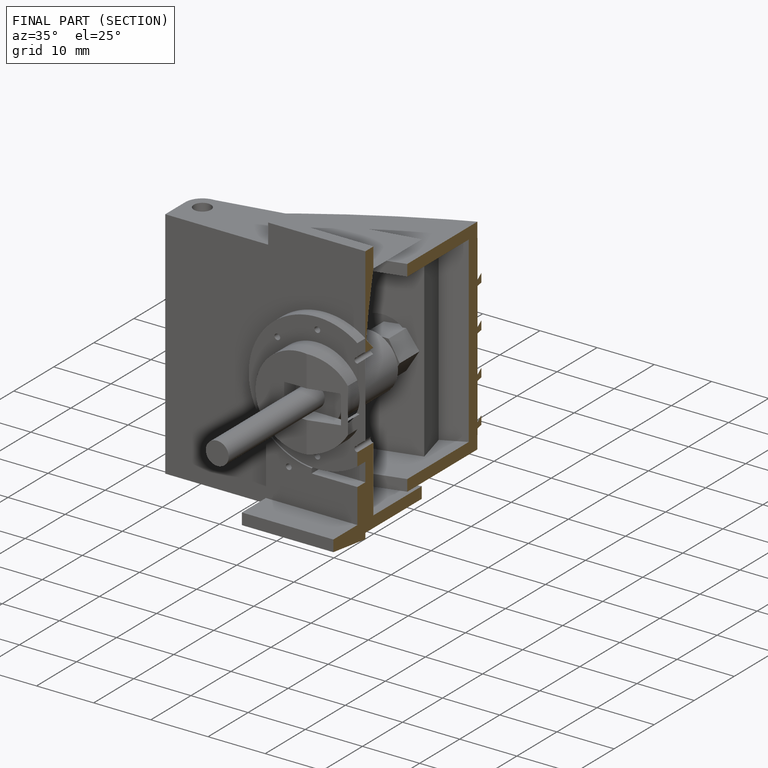
[diagram: finished part — half-section view (interior)]
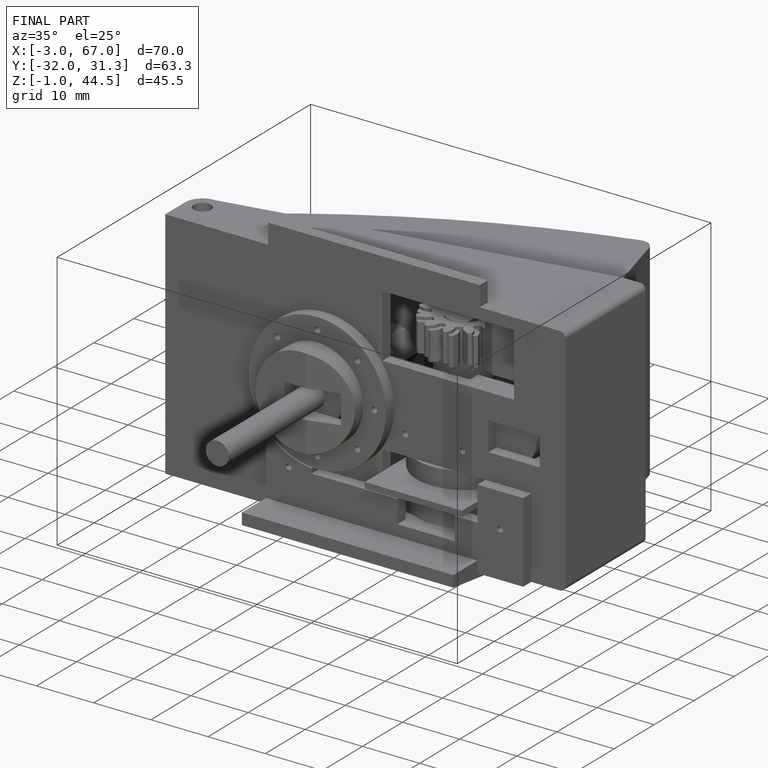
[diagram: finished part — iso view with bounding-box wireframe]
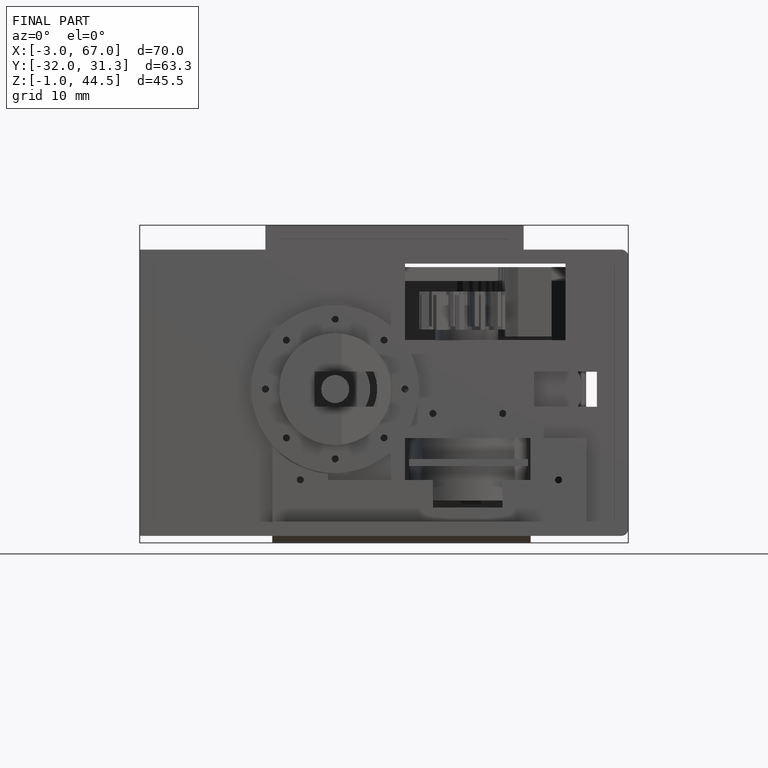
[diagram: finished part — front view with bounding-box wireframe]
